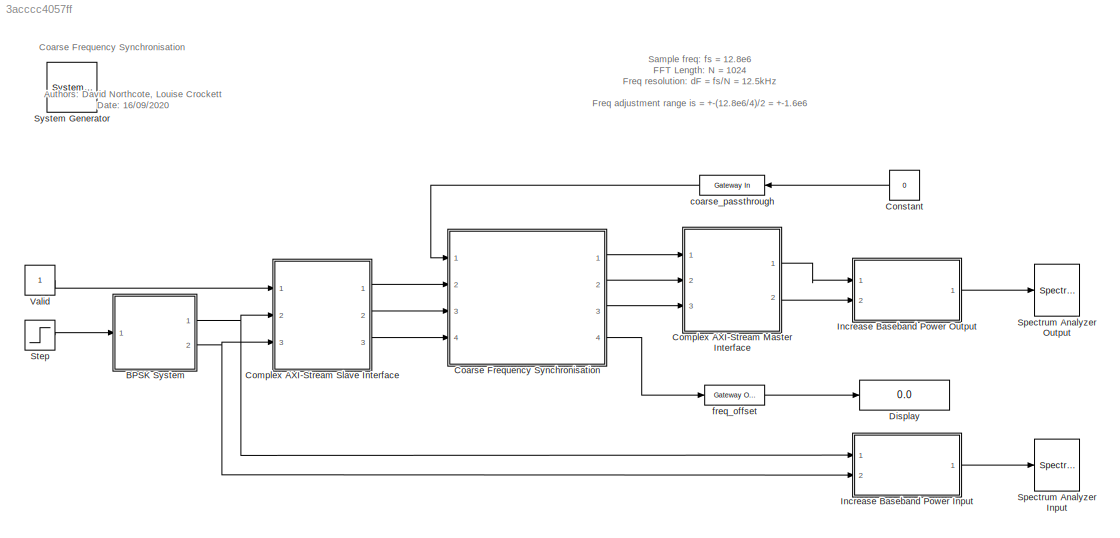
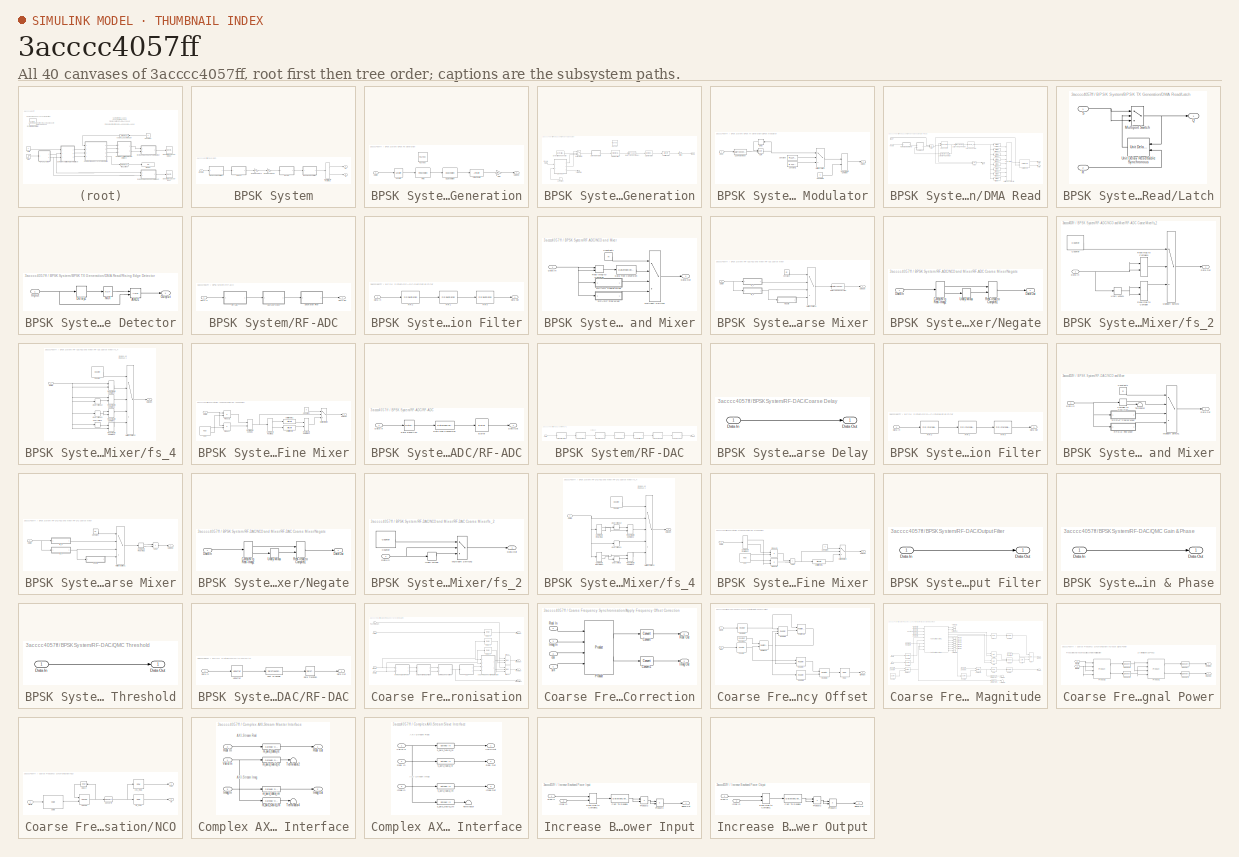
[diagram: thumbnail index - all 40 canvases of the model, root first then tree order]
MODEL slx_3acccc4057ff
KIND model
CONFIG AbsTol = auto
CONFIG EnableMultiTasking = off
CONFIG FixedStep = auto
CONFIG MaxStep = auto
CONFIG MinStep = auto
CONFIG RelTol = 1e-3
CONFIG SampleTimeConstraint = Unconstrained
CONFIG Solver = VariableStepAuto
CONFIG SolverName = VariableStepAuto
CONFIG StartTime = 0.0
CONFIG StopTime = 10.0
BLOCK [Reference]  System Generator  REF=xbsIndex_r4/ System Generator
  AttributesFormatString = System\nGenerator
  Ports = []
  SourceBlock = xbsIndex_r4/ System Generator
  SourceType = Xilinx System Generator Block
  Tag = genX
  UserDataPersistent = on
BLOCK [SubSystem] BPSK System
  Ports = [1, 2]
  RequestExecContextInheritance = off
BLOCK [SubSystem] BPSK System/BPSK RX Generation
  Ports = [1, 1]
  RequestExecContextInheritance = off
BLOCK [Reference] BPSK System/BPSK RX Generation/CIC Decimation  REF=dspmlti4/CIC
Decimation
  Ports = [1, 1]
  SourceBlock = dspmlti4/CIC\nDecimation
  SourceProductBaseCode = DS
  SourceType = CIC Decimation
  UserDataPersistent = on
BLOCK [Inport] BPSK System/BPSK RX Generation/Data In
BLOCK [Outport] BPSK System/BPSK RX Generation/Data Out
  VectorParamsAs1DForOutWhenUnconnected = off
BLOCK [Reference] BPSK System/BPSK RX Generation/FDATool  REF=xbsIndex_r4/FDATool
  Ports = []
  SourceBlock = xbsIndex_r4/FDATool
  SourceType = Xilinx FDATool Interface Block
  UserDataPersistent = on
BLOCK [Reference] BPSK System/BPSK RX Generation/FIR 0  REF=dspmlti4/FIR
Decimation
  Ports = [1, 1]
  SourceBlock = dspmlti4/FIR\nDecimation
  SourceProductBaseCode = DS
  SourceType = FIR Decimation
  UserDataPersistent = on
BLOCK [Gain] BPSK System/BPSK RX Generation/Gain
  Gain = 2^(floor(log2(5^3)))/(5^3)
  OutDataTypeStr = fixdt(1,16,14)
  ParamDataTypeStr = fixdt(1,16,14)
BLOCK [ArithShift] BPSK System/BPSK RX Generation/Shift Arithmetic
  BitShiftDirection = Right
  BitShiftNumber = floor(log2(5^3))
  InputPortMap = u0
  Ports = [1, 1]
BLOCK [Unbuffer] BPSK System/BPSK RX Generation/Unbuffer
  Ports = [1, 1]
BLOCK [SubSystem] BPSK System/BPSK TX Generation
  Ports = [1, 1]
  RequestExecContextInheritance = off
BLOCK [Outport] BPSK System/BPSK TX Generation/BPSK
  VectorParamsAs1DForOutWhenUnconnected = off
BLOCK [Reference] BPSK System/BPSK TX Generation/Bernoulli Binary Generator  REF=commrandsrc3/Bernoulli Binary
Generator
  Ports = [0, 1]
  SourceBlock = commrandsrc3/Bernoulli Binary\nGenerator
  SourceProductBaseCode = CM
  SourceType = Bernoulli Binary Generator
BLOCK [Reference] BPSK System/BPSK TX Generation/CIC Interpolation  REF=dspmlti4/CIC
Interpolation
  Ports = [1, 1]
  SourceBlock = dspmlti4/CIC\nInterpolation
  SourceProductBaseCode = DS
  SourceType = CIC Interpolation
  UserDataPersistent = on
BLOCK [Constant] BPSK System/BPSK TX Generation/Constant
  SampleTime = 1/12.5e3
BLOCK [SubSystem] BPSK System/BPSK TX Generation/DBPSK Modulator
  Ports = [1, 1]
  RequestExecContextInheritance = off
BLOCK [DataTypeConversion] BPSK System/BPSK TX Generation/DBPSK Modulator/Cast To Boolean
  OutDataTypeStr = boolean
  RndMeth = Floor
  SaturateOnIntegerOverflow = off
BLOCK [Constant] BPSK System/BPSK TX Generation/DBPSK Modulator/Constant
  OutDataTypeStr = fixdt(1,16,14)
  SampleTime = -1
  Value = fi(1, 1, 16, 14)
BLOCK [Constant] BPSK System/BPSK TX Generation/DBPSK Modulator/Constant1
  OutDataTypeStr = fixdt(1,16,14)
  SampleTime = -1
  Value = fi(-1, 1, 16, 14)
BLOCK [Constant] BPSK System/BPSK TX Generation/DBPSK Modulator/Constant2
  OutDataTypeStr = Inherit: Inherit via back propagation
  SampleTime = -1
  Value = 0
BLOCK [Delay] BPSK System/BPSK TX Generation/DBPSK Modulator/Delay
  DelayLength = 1
  InputPortMap = u0
  Ports = [1, 1]
BLOCK [Inport] BPSK System/BPSK TX Generation/DBPSK Modulator/Input
BLOCK [MultiPortSwitch] BPSK System/BPSK TX Generation/DBPSK Modulator/Multiport Switch
  DataPortOrder = Zero-based contiguous
  InputSameDT = off
  Inputs = 2
  Ports = [3, 1]
  SaturateOnIntegerOverflow = off
  zeroidx = on
BLOCK [Outport] BPSK System/BPSK TX Generation/DBPSK Modulator/Output
  VectorParamsAs1DForOutWhenUnconnected = off
BLOCK [RealImagToComplex] BPSK System/BPSK TX Generation/DBPSK Modulator/Real-Imag to Complex
  Ports = [2, 1]
BLOCK [Logic] BPSK System/BPSK TX Generation/DBPSK Modulator/XOR
  AllPortsSameDT = off
  IconShape = distinctive
  Operator = XOR
  OutDataTypeStr = boolean
  Ports = [2, 1]
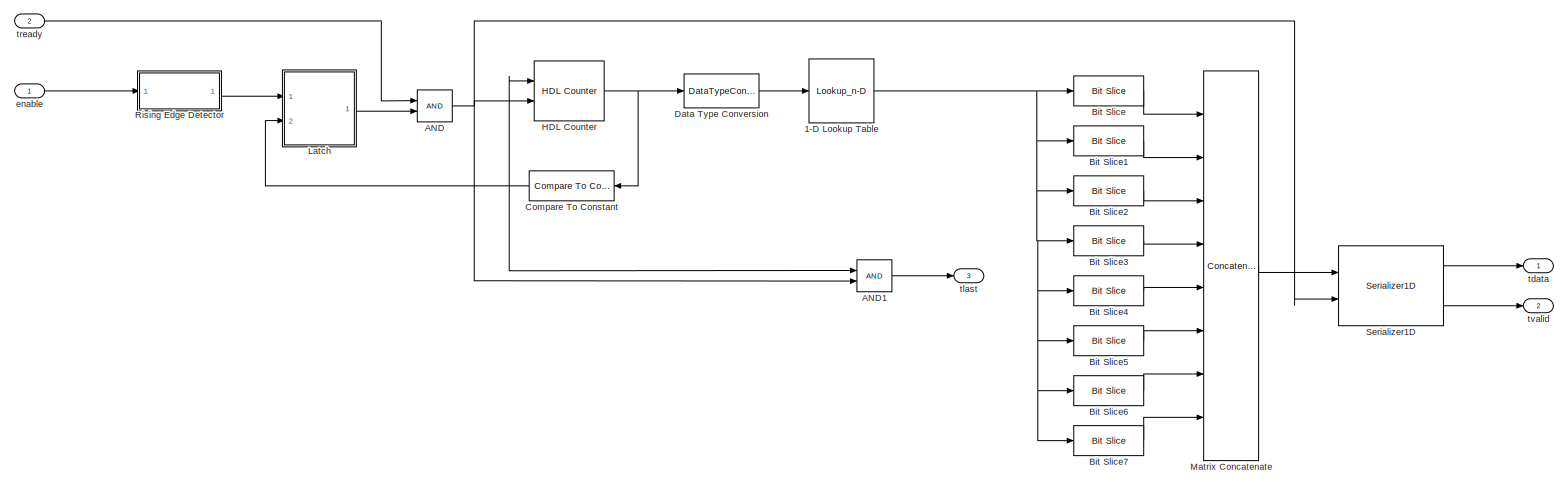
[diagram: BPSK System/BPSK TX Generation/DMA Read - part 1/1, most of the canvas]
BLOCK [SubSystem] BPSK System/BPSK TX Generation/DMA Read
  Ports = [2, 3]
  RequestExecContextInheritance = off
BLOCK [Lookup_n-D] BPSK System/BPSK TX Generation/DMA Read/1-D Lookup Table
  BreakpointsForDimension1 = [0:1:numel(tx_data)-1]
  ExtrapMethod = Clip
  InternalRulePriority = Speed
  NumberOfTableDimensions = 1
  OutDataTypeStr = Inherit: Inherit from 'Table data'
  Ports = [1, 1]
  RndMeth = Simplest
  Table = tx_data
  TableDataTypeStr = Inherit: Inherit from 'Table data'
BLOCK [Logic] BPSK System/BPSK TX Generation/DMA Read/AND
  AllPortsSameDT = off
  IconShape = distinctive
  OutDataTypeStr = boolean
  Ports = [2, 1]
BLOCK [Logic] BPSK System/BPSK TX Generation/DMA Read/AND1
  AllPortsSameDT = off
  IconShape = distinctive
  OutDataTypeStr = boolean
  Ports = [2, 1]
BLOCK [Reference] BPSK System/BPSK TX Generation/DMA Read/Bit Slice  REF=hdlsllib/Logic and Bit
Operations/Bit Slice
  Ports = [1, 1]
  SourceBlock = hdlsllib/Logic and Bit\nOperations/Bit Slice
  SourceProductBaseCode = SL
  SourceType = Bit Slice
BLOCK [Reference] BPSK System/BPSK TX Generation/DMA Read/Bit Slice1  REF=hdlsllib/Logic and Bit
Operations/Bit Slice
  Ports = [1, 1]
  SourceBlock = hdlsllib/Logic and Bit\nOperations/Bit Slice
  SourceProductBaseCode = SL
  SourceType = Bit Slice
BLOCK [Reference] BPSK System/BPSK TX Generation/DMA Read/Bit Slice2  REF=hdlsllib/Logic and Bit
Operations/Bit Slice
  Ports = [1, 1]
  SourceBlock = hdlsllib/Logic and Bit\nOperations/Bit Slice
  SourceProductBaseCode = SL
  SourceType = Bit Slice
BLOCK [Reference] BPSK System/BPSK TX Generation/DMA Read/Bit Slice3  REF=hdlsllib/Logic and Bit
Operations/Bit Slice
  Ports = [1, 1]
  SourceBlock = hdlsllib/Logic and Bit\nOperations/Bit Slice
  SourceProductBaseCode = SL
  SourceType = Bit Slice
BLOCK [Reference] BPSK System/BPSK TX Generation/DMA Read/Bit Slice4  REF=hdlsllib/Logic and Bit
Operations/Bit Slice
  Ports = [1, 1]
  SourceBlock = hdlsllib/Logic and Bit\nOperations/Bit Slice
  SourceProductBaseCode = SL
  SourceType = Bit Slice
BLOCK [Reference] BPSK System/BPSK TX Generation/DMA Read/Bit Slice5  REF=hdlsllib/Logic and Bit
Operations/Bit Slice
  Ports = [1, 1]
  SourceBlock = hdlsllib/Logic and Bit\nOperations/Bit Slice
  SourceProductBaseCode = SL
  SourceType = Bit Slice
BLOCK [Reference] BPSK System/BPSK TX Generation/DMA Read/Bit Slice6  REF=hdlsllib/Logic and Bit
Operations/Bit Slice
  Ports = [1, 1]
  SourceBlock = hdlsllib/Logic and Bit\nOperations/Bit Slice
  SourceProductBaseCode = SL
  SourceType = Bit Slice
BLOCK [Reference] BPSK System/BPSK TX Generation/DMA Read/Bit Slice7  REF=hdlsllib/Logic and Bit
Operations/Bit Slice
  Ports = [1, 1]
  SourceBlock = hdlsllib/Logic and Bit\nOperations/Bit Slice
  SourceProductBaseCode = SL
  SourceType = Bit Slice
BLOCK [Reference] BPSK System/BPSK TX Generation/DMA Read/Compare To Constant  REF=simulink/Logic and Bit
Operations/Compare
To Constant
  Ports = [1, 1]
  SourceBlock = simulink/Logic and Bit\nOperations/Compare\nTo Constant
  SourceProductBaseCode = SL
  SourceType = Compare To Constant
BLOCK [DataTypeConversion] BPSK System/BPSK TX Generation/DMA Read/Data Type Conversion
  OutDataTypeStr = fixdt(0, ceil(log2(numel(tx_data))), 0)
  RndMeth = Floor
  SaturateOnIntegerOverflow = off
BLOCK [Reference] BPSK System/BPSK TX Generation/DMA Read/HDL Counter  REF=hdlsllib/Sources/HDL Counter
  Ports = [2, 1]
  SourceBlock = hdlsllib/Sources/HDL Counter
  SourceProductBaseCode = SL
  SourceType = HDL Counter
BLOCK [SubSystem] BPSK System/BPSK TX Generation/DMA Read/Latch
  Ports = [2, 1]
  RequestExecContextInheritance = off
BLOCK [MultiPortSwitch] BPSK System/BPSK TX Generation/DMA Read/Latch/Multiport Switch
  DataPortOrder = Zero-based contiguous
  InputSameDT = off
  Inputs = 2
  Ports = [3, 1]
  SaturateOnIntegerOverflow = off
  zeroidx = on
BLOCK [Outport] BPSK System/BPSK TX Generation/DMA Read/Latch/Q
  VectorParamsAs1DForOutWhenUnconnected = off
BLOCK [Inport] BPSK System/BPSK TX Generation/DMA Read/Latch/R
  Port = 2
BLOCK [Inport] BPSK System/BPSK TX Generation/DMA Read/Latch/S
BLOCK [Reference] BPSK System/BPSK TX Generation/DMA Read/Latch/Unit Delay Resettable Synchronous  REF=hdlsllib/Discrete/Unit Delay Resettable
Synchronous
  Ports = [2, 1]
  SourceBlock = hdlsllib/Discrete/Unit Delay Resettable\nSynchronous
  SourceProductBaseCode = SL
  SourceType = Unit Delay Resettable Synchronous
BLOCK [Concatenate] BPSK System/BPSK TX Generation/DMA Read/Matrix Concatenate
  ConcatenateDimension = 2
  Mode = Multidimensional array
  NumInputs = 8
  Ports = [8, 1]
BLOCK [SubSystem] BPSK System/BPSK TX Generation/DMA Read/Rising Edge Detector
  Ports = [1, 1]
  RequestExecContextInheritance = off
BLOCK [Logic] BPSK System/BPSK TX Generation/DMA Read/Rising Edge Detector/AND1
  AllPortsSameDT = off
  IconShape = distinctive
  OutDataTypeStr = boolean
  Ports = [2, 1]
BLOCK [Delay] BPSK System/BPSK TX Generation/DMA Read/Rising Edge Detector/Delay1
  DelayLength = 1
  InputPortMap = u0
  Ports = [1, 1]
BLOCK [Inport] BPSK System/BPSK TX Generation/DMA Read/Rising Edge Detector/Input
BLOCK [Logic] BPSK System/BPSK TX Generation/DMA Read/Rising Edge Detector/NOT
  AllPortsSameDT = off
  IconShape = distinctive
  Operator = NOT
  OutDataTypeStr = boolean
  Ports = [1, 1]
BLOCK [Outport] BPSK System/BPSK TX Generation/DMA Read/Rising Edge Detector/Output
  VectorParamsAs1DForOutWhenUnconnected = off
BLOCK [Reference] BPSK System/BPSK TX Generation/DMA Read/Serializer1D  REF=hdlsllib/HDL Operations/Serializer1D
  Ports = [2, 2]
  SourceBlock = hdlsllib/HDL Operations/Serializer1D
  SourceProductBaseCode = SL
  SourceType = Serializer1D
BLOCK [Inport] BPSK System/BPSK TX Generation/DMA Read/enable
BLOCK [Outport] BPSK System/BPSK TX Generation/DMA Read/tdata
  VectorParamsAs1DForOutWhenUnconnected = off
BLOCK [Outport] BPSK System/BPSK TX Generation/DMA Read/tlast
  Port = 3
  VectorParamsAs1DForOutWhenUnconnected = off
BLOCK [Inport] BPSK System/BPSK TX Generation/DMA Read/tready
  Port = 2
BLOCK [Outport] BPSK System/BPSK TX Generation/DMA Read/tvalid
  Port = 2
  VectorParamsAs1DForOutWhenUnconnected = off
BLOCK [DataTypeConversion] BPSK System/BPSK TX Generation/Data Type Conversion2
  OutDataTypeStr = fixdt(1,16,14)
  RndMeth = Floor
  SaturateOnIntegerOverflow = off
BLOCK [Inport] BPSK System/BPSK TX Generation/Enable
BLOCK [Reference] BPSK System/BPSK TX Generation/FDATool  REF=xbsIndex_r4/FDATool
  Ports = []
  SourceBlock = xbsIndex_r4/FDATool
  SourceType = Xilinx FDATool Interface Block
  UserDataPersistent = on
BLOCK [Reference] BPSK System/BPSK TX Generation/FIR Interpolation  REF=dspmlti4/FIR
Interpolation
  Ports = [1, 1]
  SourceBlock = dspmlti4/FIR\nInterpolation
  SourceProductBaseCode = DS
  SourceType = FIR Interpolation
  UserDataPersistent = on
BLOCK [Gain] BPSK System/BPSK TX Generation/Multiply
  Gain = fi(0.8192, 1, 16, 14)
  OutDataTypeStr = fixdt(1,16,14)
  ParamDataTypeStr = fixdt(1,16,15)
BLOCK [MultiPortSwitch] BPSK System/BPSK TX Generation/Multiport Switch
  DataPortOrder = Zero-based contiguous
  InputSameDT = off
  Inputs = 2
  Ports = [3, 1]
  SaturateOnIntegerOverflow = off
  zeroidx = on
BLOCK [ArithShift] BPSK System/BPSK TX Generation/Shift Arithmetic
  BitShiftDirection = Right
  BitShiftNumber = 33
  InputPortMap = u0
  Ports = [1, 1]
BLOCK [Terminator] BPSK System/BPSK TX Generation/Terminator1
BLOCK [ComplexToRealImag] BPSK System/Complex to Real-Imag
  Ports = [1, 2]
BLOCK [Inport] BPSK System/Enable
BLOCK [Outport] BPSK System/Im
  Port = 2
  VectorParamsAs1DForOutWhenUnconnected = off
BLOCK [Gain] BPSK System/RF Balun Gain RX
  Gain = 1/2
BLOCK [Gain] BPSK System/RF Balun Gain TX
  Gain = 1/2
BLOCK [SubSystem] BPSK System/RF-ADC
  Ports = [1, 1]
  RequestExecContextInheritance = off
BLOCK [Inport] BPSK System/RF-ADC/Data In
BLOCK [Outport] BPSK System/RF-ADC/Data Out
  VectorParamsAs1DForOutWhenUnconnected = off
BLOCK [SubSystem] BPSK System/RF-ADC/Decimation Filter
  Ports = [1, 1]
  RequestExecContextInheritance = off
BLOCK [Inport] BPSK System/RF-ADC/Decimation Filter/Data In
BLOCK [Outport] BPSK System/RF-ADC/Decimation Filter/Data Out
  VectorParamsAs1DForOutWhenUnconnected = off
BLOCK [Reference] BPSK System/RF-ADC/Decimation Filter/FIR 0  REF=dspmlti4/FIR
Decimation
  Ports = [1, 1]
  SourceBlock = dspmlti4/FIR\nDecimation
  SourceProductBaseCode = DS
  SourceType = FIR Decimation
  UserDataPersistent = on
BLOCK [Reference] BPSK System/RF-ADC/Decimation Filter/FIR 1  REF=dspmlti4/FIR
Decimation
  Ports = [1, 1]
  SourceBlock = dspmlti4/FIR\nDecimation
  SourceProductBaseCode = DS
  SourceType = FIR Decimation
  UserDataPersistent = on
BLOCK [Reference] BPSK System/RF-ADC/Decimation Filter/FIR 2  REF=dspmlti4/FIR
Decimation
  Ports = [1, 1]
  SourceBlock = dspmlti4/FIR\nDecimation
  SourceProductBaseCode = DS
  SourceType = FIR Decimation
  UserDataPersistent = on
BLOCK [SubSystem] BPSK System/RF-ADC/NCO and Mixer
  Ports = [1, 1]
  RequestExecContextInheritance = off
BLOCK [Constant] BPSK System/RF-ADC/NCO and Mixer/Constant1
  OutDataTypeStr = fixdt(0,2,0)
  SampleTime = -1
  Value = m
BLOCK [Inport] BPSK System/RF-ADC/NCO and Mixer/Data In
BLOCK [Outport] BPSK System/RF-ADC/NCO and Mixer/Data Out
  VectorParamsAs1DForOutWhenUnconnected = off
BLOCK [DataTypeConversion] BPSK System/RF-ADC/NCO and Mixer/Data Type Conversion
  OutDataTypeStr = fixdt(1,16,14)
  RndMeth = Floor
  SaturateOnIntegerOverflow = off
BLOCK [MultiPortSwitch] BPSK System/RF-ADC/NCO and Mixer/Multiport Switch1
  DataPortOrder = Zero-based contiguous
  InputSameDT = off
  Ports = [4, 1]
  SaturateOnIntegerOverflow = off
  zeroidx = on
BLOCK [SubSystem] BPSK System/RF-ADC/NCO and Mixer/RF-ADC Coarse Mixer
  Ports = [1, 1]
  RequestExecContextInheritance = off
BLOCK [Constant] BPSK System/RF-ADC/NCO and Mixer/RF-ADC Coarse Mixer/Constant
  OutDataTypeStr = fixdt(0,2,0)
  SampleTime = -1
  Value = mc
BLOCK [Inport] BPSK System/RF-ADC/NCO and Mixer/RF-ADC Coarse Mixer/Data In
BLOCK [Outport] BPSK System/RF-ADC/NCO and Mixer/RF-ADC Coarse Mixer/Data Out
  VectorParamsAs1DForOutWhenUnconnected = off
BLOCK [DataTypeConversion] BPSK System/RF-ADC/NCO and Mixer/RF-ADC Coarse Mixer/Data Type Conversion
  OutDataTypeStr = fixdt(1,16,14)
  RndMeth = Floor
  SaturateOnIntegerOverflow = off
BLOCK [MultiPortSwitch] BPSK System/RF-ADC/NCO and Mixer/RF-ADC Coarse Mixer/Multiport Switch1
  DataPortOrder = Zero-based contiguous
  InputSameDT = off
  Ports = [4, 1]
  SaturateOnIntegerOverflow = off
  zeroidx = on
BLOCK [SubSystem] BPSK System/RF-ADC/NCO and Mixer/RF-ADC Coarse Mixer/Negate
  Ports = [1, 1]
  RequestExecContextInheritance = off
BLOCK [ComplexToRealImag] BPSK System/RF-ADC/NCO and Mixer/RF-ADC Coarse Mixer/Negate/Complex to Real-Imag2
  Ports = [1, 2]
BLOCK [Inport] BPSK System/RF-ADC/NCO and Mixer/RF-ADC Coarse Mixer/Negate/Data In
BLOCK [Outport] BPSK System/RF-ADC/NCO and Mixer/RF-ADC Coarse Mixer/Negate/Data Out
  VectorParamsAs1DForOutWhenUnconnected = off
BLOCK [RealImagToComplex] BPSK System/RF-ADC/NCO and Mixer/RF-ADC Coarse Mixer/Negate/Real-Imag to Complex1
  Ports = [2, 1]
BLOCK [UnaryMinus] BPSK System/RF-ADC/NCO and Mixer/RF-ADC Coarse Mixer/Negate/Unary Minus
BLOCK [SubSystem] BPSK System/RF-ADC/NCO and Mixer/RF-ADC Coarse Mixer/fs_2
  Ports = [1, 1]
  RequestExecContextInheritance = off
BLOCK [Reference] BPSK System/RF-ADC/NCO and Mixer/RF-ADC Coarse Mixer/fs_2/Counter  REF=dspswit3/Counter
  Ports = [0, 1]
  SourceBlock = dspswit3/Counter
  SourceProductBaseCode = DS
  SourceType = Counter
BLOCK [Inport] BPSK System/RF-ADC/NCO and Mixer/RF-ADC Coarse Mixer/fs_2/Data In
BLOCK [Outport] BPSK System/RF-ADC/NCO and Mixer/RF-ADC Coarse Mixer/fs_2/Data Out
  VectorParamsAs1DForOutWhenUnconnected = off
BLOCK [MultiPortSwitch] BPSK System/RF-ADC/NCO and Mixer/RF-ADC Coarse Mixer/fs_2/Multiport Switch2
  DataPortOrder = Zero-based contiguous
  InputSameDT = off
  Inputs = 2
  Ports = [3, 1]
  SaturateOnIntegerOverflow = off
  zeroidx = on
BLOCK [RealImagToComplex] BPSK System/RF-ADC/NCO and Mixer/RF-ADC Coarse Mixer/fs_2/Real-Imag to Complex
  Ports = [2, 1]
BLOCK [RealImagToComplex] BPSK System/RF-ADC/NCO and Mixer/RF-ADC Coarse Mixer/fs_2/Real-Imag to Complex1
  Ports = [2, 1]
BLOCK [UnaryMinus] BPSK System/RF-ADC/NCO and Mixer/RF-ADC Coarse Mixer/fs_2/Unary Minus1
BLOCK [SubSystem] BPSK System/RF-ADC/NCO and Mixer/RF-ADC Coarse Mixer/fs_4
  Ports = [1, 1]
  RequestExecContextInheritance = off
BLOCK [Reference] BPSK System/RF-ADC/NCO and Mixer/RF-ADC Coarse Mixer/fs_4/Counter  REF=dspswit3/Counter
  Ports = [0, 1]
  SourceBlock = dspswit3/Counter
  SourceProductBaseCode = DS
  SourceType = Counter
BLOCK [Inport] BPSK System/RF-ADC/NCO and Mixer/RF-ADC Coarse Mixer/fs_4/Data In
BLOCK [Outport] BPSK System/RF-ADC/NCO and Mixer/RF-ADC Coarse Mixer/fs_4/Data Out
  VectorParamsAs1DForOutWhenUnconnected = off
BLOCK [MultiPortSwitch] BPSK System/RF-ADC/NCO and Mixer/RF-ADC Coarse Mixer/fs_4/Multiport Switch2
  DataPortOrder = Zero-based contiguous
  InputSameDT = off
  Inputs = 4
  Ports = [5, 1]
  SaturateOnIntegerOverflow = off
  zeroidx = on
BLOCK [RealImagToComplex] BPSK System/RF-ADC/NCO and Mixer/RF-ADC Coarse Mixer/fs_4/Real-Imag to Complex1
  Ports = [2, 1]
BLOCK [RealImagToComplex] BPSK System/RF-ADC/NCO and Mixer/RF-ADC Coarse Mixer/fs_4/Real-Imag to Complex2
  Ports = [2, 1]
BLOCK [RealImagToComplex] BPSK System/RF-ADC/NCO and Mixer/RF-ADC Coarse Mixer/fs_4/Real-Imag to Complex3
  Ports = [2, 1]
BLOCK [RealImagToComplex] BPSK System/RF-ADC/NCO and Mixer/RF-ADC Coarse Mixer/fs_4/Real-Imag to Complex4
  Ports = [2, 1]
BLOCK [UnaryMinus] BPSK System/RF-ADC/NCO and Mixer/RF-ADC Coarse Mixer/fs_4/Unary Minus
BLOCK [UnaryMinus] BPSK System/RF-ADC/NCO and Mixer/RF-ADC Coarse Mixer/fs_4/Unary Minus1
BLOCK [UnaryMinus] BPSK System/RF-ADC/NCO and Mixer/RF-ADC Coarse Mixer/fs_4/Unary Minus2
BLOCK [SubSystem] BPSK System/RF-ADC/NCO and Mixer/RF-ADC Fine Mixer
  Ports = [1, 1]
  RequestExecContextInheritance = off
BLOCK [ComplexToRealImag] BPSK System/RF-ADC/NCO and Mixer/RF-ADC Fine Mixer/Complex to Real-Imag
  Ports = [1, 2]
BLOCK [Constant] BPSK System/RF-ADC/NCO and Mixer/RF-ADC Fine Mixer/Constant
  SampleTime = -1
  Value = 0
BLOCK [Inport] BPSK System/RF-ADC/NCO and Mixer/RF-ADC Fine Mixer/Data In
BLOCK [Outport] BPSK System/RF-ADC/NCO and Mixer/RF-ADC Fine Mixer/Data Out
  VectorParamsAs1DForOutWhenUnconnected = off
BLOCK [MultiPortSwitch] BPSK System/RF-ADC/NCO and Mixer/RF-ADC Fine Mixer/Multiport Switch
  DataPortOrder = Zero-based contiguous
  InputSameDT = off
  Inputs = 2
  Ports = [3, 1]
  SaturateOnIntegerOverflow = off
  zeroidx = on
BLOCK [Reference] BPSK System/RF-ADC/NCO and Mixer/RF-ADC Fine Mixer/NCO  REF=dspsigops/NCO
  Ports = [0, 2]
  SourceBlock = dspsigops/NCO
  SourceProductBaseCode = DS
  SourceType = NCO
BLOCK [Product] BPSK System/RF-ADC/NCO and Mixer/RF-ADC Fine Mixer/Product
  OutDataTypeStr = fixdt(1,16,14)
  Ports = [2, 1]
BLOCK [Product] BPSK System/RF-ADC/NCO and Mixer/RF-ADC Fine Mixer/Product1
  OutDataTypeStr = fixdt(1,16,14)
  Ports = [2, 1]
BLOCK [RealImagToComplex] BPSK System/RF-ADC/NCO and Mixer/RF-ADC Fine Mixer/Real-Imag to Complex
  Ports = [2, 1]
BLOCK [RealImagToComplex] BPSK System/RF-ADC/NCO and Mixer/RF-ADC Fine Mixer/Real-Imag to Complex1
  Ports = [2, 1]
BLOCK [ArithShift] BPSK System/RF-ADC/NCO and Mixer/RF-ADC Fine Mixer/Shift Arithmetic
  BitShiftDirection = Right
  BitShiftNumber = 1
  InputPortMap = u0
  Ports = [1, 1]
BLOCK [ArithShift] BPSK System/RF-ADC/NCO and Mixer/RF-ADC Fine Mixer/Shift Arithmetic1
  BitShiftDirection = Right
  BitShiftNumber = 1
  InputPortMap = u0
  Ports = [1, 1]
BLOCK [RealImagToComplex] BPSK System/RF-ADC/NCO and Mixer/Real-Imag to Complex
  Ports = [2, 1]
BLOCK [SubSystem] BPSK System/RF-ADC/RF-ADC
  Ports = [1, 1]
  RequestExecContextInheritance = off
BLOCK [Buffer] BPSK System/RF-ADC/RF-ADC/Buffer
  N = ssr
  OutputFrames = off
BLOCK [Inport] BPSK System/RF-ADC/RF-ADC/Data In
BLOCK [Outport] BPSK System/RF-ADC/RF-ADC/Data Out
  VectorParamsAs1DForOutWhenUnconnected = off
BLOCK [DataTypeConversion] BPSK System/RF-ADC/RF-ADC/Data Type Conversion
  OutDataTypeStr = fixdt(1,12,10)
  RndMeth = Floor
  SaturateOnIntegerOverflow = off
BLOCK [RateTransition] BPSK System/RF-ADC/RF-ADC/Rate Transition
  OutPortSampleTime = 1/fs
BLOCK [SubSystem] BPSK System/RF-DAC
  Ports = [1, 1]
  RequestExecContextInheritance = off
BLOCK [SubSystem] BPSK System/RF-DAC/Coarse Delay
  Ports = [1, 1]
  RequestExecContextInheritance = off
BLOCK [Inport] BPSK System/RF-DAC/Coarse Delay/Data In
BLOCK [Outport] BPSK System/RF-DAC/Coarse Delay/Data Out
  VectorParamsAs1DForOutWhenUnconnected = off
BLOCK [Inport] BPSK System/RF-DAC/Data In
BLOCK [Outport] BPSK System/RF-DAC/Data Out
  VectorParamsAs1DForOutWhenUnconnected = off
BLOCK [SubSystem] BPSK System/RF-DAC/Interpolation Filter
  Ports = [1, 1]
  RequestExecContextInheritance = off
BLOCK [Inport] BPSK System/RF-DAC/Interpolation Filter/Data In
BLOCK [Outport] BPSK System/RF-DAC/Interpolation Filter/Data Out
  VectorParamsAs1DForOutWhenUnconnected = off
BLOCK [Reference] BPSK System/RF-DAC/Interpolation Filter/FIR 0  REF=dspmlti4/FIR
Interpolation
  Ports = [1, 1]
  SourceBlock = dspmlti4/FIR\nInterpolation
  SourceProductBaseCode = DS
  SourceType = FIR Interpolation
  UserDataPersistent = on
BLOCK [Reference] BPSK System/RF-DAC/Interpolation Filter/FIR 1  REF=dspmlti4/FIR
Interpolation
  Ports = [1, 1]
  SourceBlock = dspmlti4/FIR\nInterpolation
  SourceProductBaseCode = DS
  SourceType = FIR Interpolation
  UserDataPersistent = on
BLOCK [Reference] BPSK System/RF-DAC/Interpolation Filter/FIR 2  REF=dspmlti4/FIR
Interpolation
  Ports = [1, 1]
  SourceBlock = dspmlti4/FIR\nInterpolation
  SourceProductBaseCode = DS
  SourceType = FIR Interpolation
  UserDataPersistent = on
BLOCK [SubSystem] BPSK System/RF-DAC/NCO and Mixer
  Ports = [1, 1]
  RequestExecContextInheritance = off
BLOCK [ComplexToRealImag] BPSK System/RF-DAC/NCO and Mixer/Complex to Real-Imag
  Ports = [1, 2]
BLOCK [Constant] BPSK System/RF-DAC/NCO and Mixer/Constant1
  OutDataTypeStr = fixdt(0,2,0)
  SampleTime = -1
  Value = m
BLOCK [Inport] BPSK System/RF-DAC/NCO and Mixer/Data In
BLOCK [Outport] BPSK System/RF-DAC/NCO and Mixer/Data Out
  VectorParamsAs1DForOutWhenUnconnected = off
BLOCK [MultiPortSwitch] BPSK System/RF-DAC/NCO and Mixer/Multiport Switch1
  DataPortOrder = Zero-based contiguous
  InputSameDT = off
  Ports = [4, 1]
  SaturateOnIntegerOverflow = off
  zeroidx = on
BLOCK [SubSystem] BPSK System/RF-DAC/NCO and Mixer/RF-DAC Coarse Mixer
  Ports = [1, 1]
  RequestExecContextInheritance = off
BLOCK [Sum] BPSK System/RF-DAC/NCO and Mixer/RF-DAC Coarse Mixer/Add2
  IconShape = rectangular
  Ports = [2, 1]
BLOCK [ComplexToRealImag] BPSK System/RF-DAC/NCO and Mixer/RF-DAC Coarse Mixer/Complex to Real-Imag
  Ports = [1, 2]
BLOCK [Constant] BPSK System/RF-DAC/NCO and Mixer/RF-DAC Coarse Mixer/Constant
  OutDataTypeStr = fixdt(0,2,0)
  SampleTime = -1
  Value = mc
BLOCK [Inport] BPSK System/RF-DAC/NCO and Mixer/RF-DAC Coarse Mixer/Data In
BLOCK [Outport] BPSK System/RF-DAC/NCO and Mixer/RF-DAC Coarse Mixer/Data Out
  VectorParamsAs1DForOutWhenUnconnected = off
BLOCK [MultiPortSwitch] BPSK System/RF-DAC/NCO and Mixer/RF-DAC Coarse Mixer/Multiport Switch1
  DataPortOrder = Zero-based contiguous
  InputSameDT = off
  Ports = [4, 1]
  SaturateOnIntegerOverflow = off
  zeroidx = on
BLOCK [SubSystem] BPSK System/RF-DAC/NCO and Mixer/RF-DAC Coarse Mixer/Negate
  Ports = [1, 1]
  RequestExecContextInheritance = off
BLOCK [ComplexToRealImag] BPSK System/RF-DAC/NCO and Mixer/RF-DAC Coarse Mixer/Negate/Complex to Real-Imag2
  Ports = [1, 2]
BLOCK [Inport] BPSK System/RF-DAC/NCO and Mixer/RF-DAC Coarse Mixer/Negate/Data In
BLOCK [Outport] BPSK System/RF-DAC/NCO and Mixer/RF-DAC Coarse Mixer/Negate/Data Out
  VectorParamsAs1DForOutWhenUnconnected = off
BLOCK [RealImagToComplex] BPSK System/RF-DAC/NCO and Mixer/RF-DAC Coarse Mixer/Negate/Real-Imag to Complex1
  Ports = [2, 1]
BLOCK [UnaryMinus] BPSK System/RF-DAC/NCO and Mixer/RF-DAC Coarse Mixer/Negate/Unary Minus
BLOCK [SubSystem] BPSK System/RF-DAC/NCO and Mixer/RF-DAC Coarse Mixer/fs_2
  Ports = [1, 1]
  RequestExecContextInheritance = off
BLOCK [Reference] BPSK System/RF-DAC/NCO and Mixer/RF-DAC Coarse Mixer/fs_2/Counter  REF=dspswit3/Counter
  Ports = [0, 1]
  SourceBlock = dspswit3/Counter
  SourceProductBaseCode = DS
  SourceType = Counter
BLOCK [Inport] BPSK System/RF-DAC/NCO and Mixer/RF-DAC Coarse Mixer/fs_2/Data In
BLOCK [Outport] BPSK System/RF-DAC/NCO and Mixer/RF-DAC Coarse Mixer/fs_2/Data Out
  VectorParamsAs1DForOutWhenUnconnected = off
BLOCK [MultiPortSwitch] BPSK System/RF-DAC/NCO and Mixer/RF-DAC Coarse Mixer/fs_2/Multiport Switch2
  DataPortOrder = Zero-based contiguous
  InputSameDT = off
  Inputs = 2
  Ports = [3, 1]
  SaturateOnIntegerOverflow = off
  zeroidx = on
BLOCK [UnaryMinus] BPSK System/RF-DAC/NCO and Mixer/RF-DAC Coarse Mixer/fs_2/Unary Minus
BLOCK [SubSystem] BPSK System/RF-DAC/NCO and Mixer/RF-DAC Coarse Mixer/fs_4
  Ports = [1, 1]
  RequestExecContextInheritance = off
BLOCK [ComplexToRealImag] BPSK System/RF-DAC/NCO and Mixer/RF-DAC Coarse Mixer/fs_4/Complex to Real-Imag
  Ports = [1, 2]
BLOCK [ComplexToRealImag] BPSK System/RF-DAC/NCO and Mixer/RF-DAC Coarse Mixer/fs_4/Complex to Real-Imag1
  Ports = [1, 2]
BLOCK [Reference] BPSK System/RF-DAC/NCO and Mixer/RF-DAC Coarse Mixer/fs_4/Counter  REF=dspswit3/Counter
  Ports = [0, 1]
  SourceBlock = dspswit3/Counter
  SourceProductBaseCode = DS
  SourceType = Counter
BLOCK [Inport] BPSK System/RF-DAC/NCO and Mixer/RF-DAC Coarse Mixer/fs_4/Data In
BLOCK [Outport] BPSK System/RF-DAC/NCO and Mixer/RF-DAC Coarse Mixer/fs_4/Data Out
  VectorParamsAs1DForOutWhenUnconnected = off
BLOCK [MultiPortSwitch] BPSK System/RF-DAC/NCO and Mixer/RF-DAC Coarse Mixer/fs_4/Multiport Switch2
  DataPortOrder = Zero-based contiguous
  InputSameDT = off
  Inputs = 4
  Ports = [5, 1]
  SaturateOnIntegerOverflow = off
  zeroidx = on
BLOCK [RealImagToComplex] BPSK System/RF-DAC/NCO and Mixer/RF-DAC Coarse Mixer/fs_4/Real-Imag to Complex2
  Ports = [2, 1]
BLOCK [RealImagToComplex] BPSK System/RF-DAC/NCO and Mixer/RF-DAC Coarse Mixer/fs_4/Real-Imag to Complex3
  Ports = [2, 1]
BLOCK [UnaryMinus] BPSK System/RF-DAC/NCO and Mixer/RF-DAC Coarse Mixer/fs_4/Unary Minus
BLOCK [UnaryMinus] BPSK System/RF-DAC/NCO and Mixer/RF-DAC Coarse Mixer/fs_4/Unary Minus1
BLOCK [UnaryMinus] BPSK System/RF-DAC/NCO and Mixer/RF-DAC Coarse Mixer/fs_4/Unary Minus2
BLOCK [SubSystem] BPSK System/RF-DAC/NCO and Mixer/RF-DAC Fine Mixer
  Ports = [1, 1]
  RequestExecContextInheritance = off
BLOCK [Sum] BPSK System/RF-DAC/NCO and Mixer/RF-DAC Fine Mixer/Add2
  IconShape = rectangular
  Ports = [2, 1]
BLOCK [ComplexToRealImag] BPSK System/RF-DAC/NCO and Mixer/RF-DAC Fine Mixer/Complex to Real-Imag1
  Ports = [1, 2]
BLOCK [Constant] BPSK System/RF-DAC/NCO and Mixer/RF-DAC Fine Mixer/Constant
  OutDataTypeStr = boolean
  SampleTime = -1
  Value = 0
BLOCK [Inport] BPSK System/RF-DAC/NCO and Mixer/RF-DAC Fine Mixer/Data In
BLOCK [Outport] BPSK System/RF-DAC/NCO and Mixer/RF-DAC Fine Mixer/Data Out
  VectorParamsAs1DForOutWhenUnconnected = off
BLOCK [MultiPortSwitch] BPSK System/RF-DAC/NCO and Mixer/RF-DAC Fine Mixer/Multiport Switch
  DataPortOrder = Zero-based contiguous
  InputSameDT = off
  Inputs = 2
  Ports = [3, 1]
  SaturateOnIntegerOverflow = off
  zeroidx = on
BLOCK [Reference] BPSK System/RF-DAC/NCO and Mixer/RF-DAC Fine Mixer/NCO  REF=dspsigops/NCO
  Ports = [0, 2]
  SourceBlock = dspsigops/NCO
  SourceProductBaseCode = DS
  SourceType = NCO
BLOCK [Product] BPSK System/RF-DAC/NCO and Mixer/RF-DAC Fine Mixer/Product1
  OutDataTypeStr = Inherit: Same as first input
  Ports = [2, 1]
BLOCK [Product] BPSK System/RF-DAC/NCO and Mixer/RF-DAC Fine Mixer/Product4
  OutDataTypeStr = Inherit: Same as first input
  Ports = [2, 1]
BLOCK [ArithShift] BPSK System/RF-DAC/NCO and Mixer/RF-DAC Fine Mixer/Shift Arithmetic1
  BitShiftDirection = Right
  BitShiftNumber = 1
  InputPortMap = u0
  Ports = [1, 1]
BLOCK [Terminator] BPSK System/RF-DAC/NCO and Mixer/Terminator
BLOCK [SubSystem] BPSK System/RF-DAC/Output Filter
  Ports = [1, 1]
  RequestExecContextInheritance = off
BLOCK [Inport] BPSK System/RF-DAC/Output Filter/Data In
BLOCK [Outport] BPSK System/RF-DAC/Output Filter/Data Out
  VectorParamsAs1DForOutWhenUnconnected = off
BLOCK [SubSystem] BPSK System/RF-DAC/QMC Gain & Phase
  Ports = [1, 1]
  RequestExecContextInheritance = off
BLOCK [Inport] BPSK System/RF-DAC/QMC Gain & Phase/Data In
BLOCK [Outport] BPSK System/RF-DAC/QMC Gain & Phase/Data Out
  VectorParamsAs1DForOutWhenUnconnected = off
BLOCK [SubSystem] BPSK System/RF-DAC/QMC Threshold
  Ports = [1, 1]
  RequestExecContextInheritance = off
BLOCK [Inport] BPSK System/RF-DAC/QMC Threshold/Data In
BLOCK [Outport] BPSK System/RF-DAC/QMC Threshold/Data Out
  VectorParamsAs1DForOutWhenUnconnected = off
BLOCK [SubSystem] BPSK System/RF-DAC/RF-DAC
  Ports = [1, 1]
  RequestExecContextInheritance = off
BLOCK [DataTypeConversion] BPSK System/RF-DAC/RF-DAC/Cast To Double
  OutDataTypeStr = double
  RndMeth = Floor
  SaturateOnIntegerOverflow = off
BLOCK [Inport] BPSK System/RF-DAC/RF-DAC/Data In
BLOCK [Outport] BPSK System/RF-DAC/RF-DAC/Data Out
  VectorParamsAs1DForOutWhenUnconnected = off
BLOCK [RateTransition] BPSK System/RF-DAC/RF-DAC/Rate Transition
  OutPortSampleTime = 0
BLOCK [Unbuffer] BPSK System/RF-DAC/RF-DAC/Unbuffer
  Ports = [1, 1]
BLOCK [Outport] BPSK System/Re
  VectorParamsAs1DForOutWhenUnconnected = off
BLOCK [SubSystem] Coarse Frequency Synchronisation
  Ports = [4, 4]
  RequestExecContextInheritance = off
BLOCK [SubSystem] Coarse Frequency Synchronisation/Apply Frequency Offset Correction
  Ports = [4, 2]
  RequestExecContextInheritance = off
BLOCK [Reference] Coarse Frequency Synchronisation/Apply Frequency Offset Correction/Convert  REF=xbsIndex_r4/Convert
  Ports = [1, 1]
  SourceBlock = xbsIndex_r4/Convert
  SourceType = Xilinx Type Converter Block
BLOCK [Reference] Coarse Frequency Synchronisation/Apply Frequency Offset Correction/Convert1  REF=xbsIndex_r4/Convert
  Ports = [1, 1]
  SourceBlock = xbsIndex_r4/Convert
  SourceType = Xilinx Type Converter Block
BLOCK [Inport] Coarse Frequency Synchronisation/Apply Frequency Offset Correction/Imag In
BLOCK [Outport] Coarse Frequency Synchronisation/Apply Frequency Offset Correction/Imag Out
  VectorParamsAs1DForOutWhenUnconnected = off
BLOCK [Reference] Coarse Frequency Synchronisation/Apply Frequency Offset Correction/Product  REF=xbsIndex_r4/Product
  Ports = [4, 2]
  SourceBlock = xbsIndex_r4/Product
  SourceType = Xilinx Multiplier Block
BLOCK [Inport] Coarse Frequency Synchronisation/Apply Frequency Offset Correction/Real In
  Port = 2
BLOCK [Outport] Coarse Frequency Synchronisation/Apply Frequency Offset Correction/Real Out
  Port = 2
  VectorParamsAs1DForOutWhenUnconnected = off
BLOCK [Inport] Coarse Frequency Synchronisation/Apply Frequency Offset Correction/cos
  Port = 3
BLOCK [Inport] Coarse Frequency Synchronisation/Apply Frequency Offset Correction/sin
  Port = 4
BLOCK [Reference] Coarse Frequency Synchronisation/Delay1  REF=xbsIndex_r4/Delay
  Ports = [1, 1]
  SourceBlock = xbsIndex_r4/Delay
  SourceType = Xilinx Delay Block
BLOCK [Reference] Coarse Frequency Synchronisation/Delay2  REF=xbsIndex_r4/Delay
  Ports = [1, 1]
  SourceBlock = xbsIndex_r4/Delay
  SourceType = Xilinx Delay Block
BLOCK [Reference] Coarse Frequency Synchronisation/Delay3  REF=xbsIndex_r4/Delay
  Ports = [1, 1]
  SourceBlock = xbsIndex_r4/Delay
  SourceType = Xilinx Delay Block
BLOCK [Outport] Coarse Frequency Synchronisation/Freq Offset
  Port = 4
  VectorParamsAs1DForOutWhenUnconnected = off
BLOCK [SubSystem] Coarse Frequency Synchronisation/Get Frequency Offset
  Ports = [2, 1]
  RequestExecContextInheritance = off
BLOCK [Reference] Coarse Frequency Synchronisation/Get Frequency Offset/Constant  REF=xbsIndex_r4/Constant
  Ports = [0, 1]
  SourceBlock = xbsIndex_r4/Constant
  SourceType = Xilinx Constant Block Block
BLOCK [Reference] Coarse Frequency Synchronisation/Get Frequency Offset/Counter  REF=xbsIndex_r4/Counter
  Ports = [1, 1]
  SourceBlock = xbsIndex_r4/Counter
  SourceType = Xilinx Counter Block
BLOCK [Inport] Coarse Frequency Synchronisation/Get Frequency Offset/Mag In
BLOCK [Outport] Coarse Frequency Synchronisation/Get Frequency Offset/Offset Out
  VectorParamsAs1DForOutWhenUnconnected = off
BLOCK [Reference] Coarse Frequency Synchronisation/Get Frequency Offset/ROM  REF=xbsIndex_r4/ROM
  Ports = [1, 1]
  SourceBlock = xbsIndex_r4/ROM
  SourceType = Xilinx Single Port Read-Only Memory Block
BLOCK [Reference] Coarse Frequency Synchronisation/Get Frequency Offset/Register  REF=xbsIndex_r4/Register
  Ports = [2, 1]
  SourceBlock = xbsIndex_r4/Register
  SourceType = Xilinx Register Block
BLOCK [Reference] Coarse Frequency Synchronisation/Get Frequency Offset/Register1  REF=xbsIndex_r4/Register
  Ports = [2, 1]
  SourceBlock = xbsIndex_r4/Register
  SourceType = Xilinx Register Block
BLOCK [Reference] Coarse Frequency Synchronisation/Get Frequency Offset/Register2  REF=xbsIndex_r4/Register
  Ports = [1, 1]
  SourceBlock = xbsIndex_r4/Register
  SourceType = Xilinx Register Block
BLOCK [Reference] Coarse Frequency Synchronisation/Get Frequency Offset/Register3  REF=xbsIndex_r4/Register
  Ports = [1, 1]
  SourceBlock = xbsIndex_r4/Register
  SourceType = Xilinx Register Block
BLOCK [Reference] Coarse Frequency Synchronisation/Get Frequency Offset/Register4  REF=xbsIndex_r4/Register
  Ports = [3, 1]
  SourceBlock = xbsIndex_r4/Register
  SourceType = Xilinx Register Block
BLOCK [Reference] Coarse Frequency Synchronisation/Get Frequency Offset/Relational  REF=xbsIndex_r4/Relational
  Ports = [2, 1]
  SourceBlock = xbsIndex_r4/Relational
  SourceType = Xilinx Arithmetic Relational Operator Block
BLOCK [Reference] Coarse Frequency Synchronisation/Get Frequency Offset/Relational2  REF=xbsIndex_r4/Relational
  Ports = [2, 1]
  SourceBlock = xbsIndex_r4/Relational
  SourceType = Xilinx Arithmetic Relational Operator Block
BLOCK [Inport] Coarse Frequency Synchronisation/Get Frequency Offset/SoF
  Port = 2
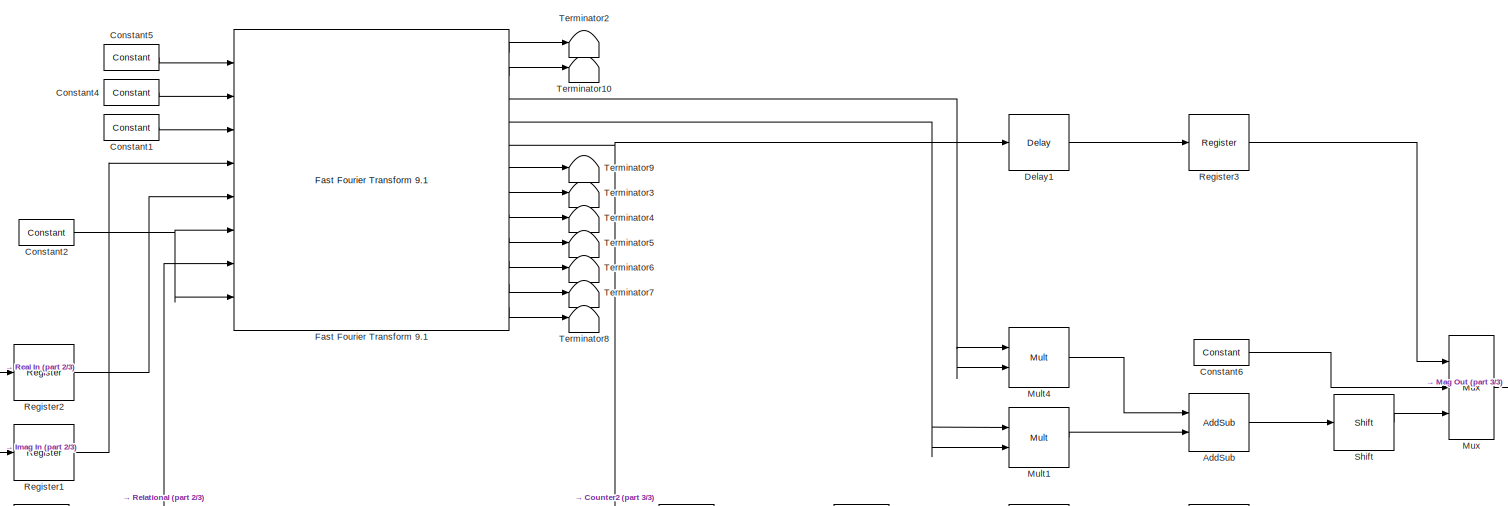
[diagram: Coarse Frequency Synchronisation/Get Spectrum Magnitude - part 1/3, full width, middle band]
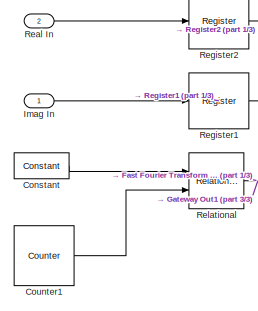
[diagram: Coarse Frequency Synchronisation/Get Spectrum Magnitude - part 2/3, bottom left region]
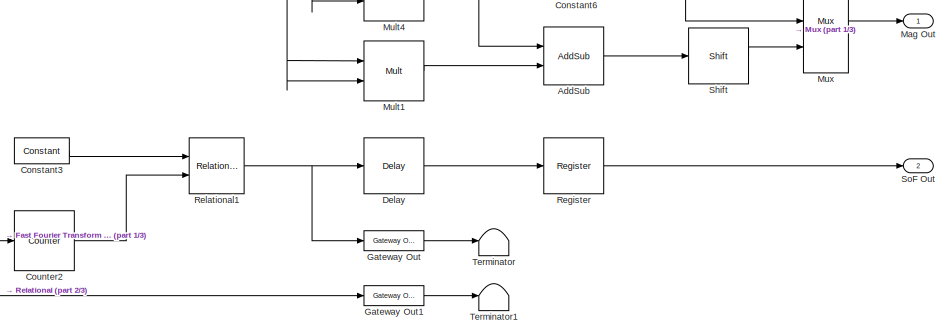
[diagram: Coarse Frequency Synchronisation/Get Spectrum Magnitude - part 3/3, bottom right region]
BLOCK [SubSystem] Coarse Frequency Synchronisation/Get Spectrum Magnitude
  Ports = [2, 2]
  RequestExecContextInheritance = off
BLOCK [Reference] Coarse Frequency Synchronisation/Get Spectrum Magnitude/AddSub  REF=xbsIndex_r4/AddSub
  Ports = [2, 1]
  SourceBlock = xbsIndex_r4/AddSub
  SourceType = Xilinx Adder/Subtracter Block
BLOCK [Reference] Coarse Frequency Synchronisation/Get Spectrum Magnitude/Constant  REF=xbsIndex_r4/Constant
  Ports = [0, 1]
  SourceBlock = xbsIndex_r4/Constant
  SourceType = Xilinx Constant Block Block
BLOCK [Reference] Coarse Frequency Synchronisation/Get Spectrum Magnitude/Constant1  REF=xbsIndex_r4/Constant
  Ports = [0, 1]
  SourceBlock = xbsIndex_r4/Constant
  SourceType = Xilinx Constant Block Block
BLOCK [Reference] Coarse Frequency Synchronisation/Get Spectrum Magnitude/Constant2  REF=xbsIndex_r4/Constant
  Ports = [0, 1]
  SourceBlock = xbsIndex_r4/Constant
  SourceType = Xilinx Constant Block Block
BLOCK [Reference] Coarse Frequency Synchronisation/Get Spectrum Magnitude/Constant3  REF=xbsIndex_r4/Constant
  Ports = [0, 1]
  SourceBlock = xbsIndex_r4/Constant
  SourceType = Xilinx Constant Block Block
BLOCK [Reference] Coarse Frequency Synchronisation/Get Spectrum Magnitude/Constant4  REF=xbsIndex_r4/Constant
  Ports = [0, 1]
  SourceBlock = xbsIndex_r4/Constant
  SourceType = Xilinx Constant Block Block
BLOCK [Reference] Coarse Frequency Synchronisation/Get Spectrum Magnitude/Constant5  REF=xbsIndex_r4/Constant
  Ports = [0, 1]
  SourceBlock = xbsIndex_r4/Constant
  SourceType = Xilinx Constant Block Block
BLOCK [Reference] Coarse Frequency Synchronisation/Get Spectrum Magnitude/Constant6  REF=xbsIndex_r4/Constant
  Ports = [0, 1]
  SourceBlock = xbsIndex_r4/Constant
  SourceType = Xilinx Constant Block Block
BLOCK [Reference] Coarse Frequency Synchronisation/Get Spectrum Magnitude/Counter1  REF=xbsIndex_r4/Counter
  Ports = [0, 1]
  SourceBlock = xbsIndex_r4/Counter
  SourceType = Xilinx Counter Block
BLOCK [Reference] Coarse Frequency Synchronisation/Get Spectrum Magnitude/Counter2  REF=xbsIndex_r4/Counter
  Ports = [1, 1]
  SourceBlock = xbsIndex_r4/Counter
  SourceType = Xilinx Counter Block
BLOCK [Reference] Coarse Frequency Synchronisation/Get Spectrum Magnitude/Delay  REF=xbsIndex_r4/Delay
  Ports = [1, 1]
  SourceBlock = xbsIndex_r4/Delay
  SourceType = Xilinx Delay Block
BLOCK [Reference] Coarse Frequency Synchronisation/Get Spectrum Magnitude/Delay1  REF=xbsIndex_r4/Delay
  Ports = [1, 1]
  SourceBlock = xbsIndex_r4/Delay
  SourceType = Xilinx Delay Block
BLOCK [Reference] Coarse Frequency Synchronisation/Get Spectrum Magnitude/Fast Fourier Transform 9.1   REF=xbsIndex_r4/Fast Fourier Transform 9.1 
  Ports = [8, 12]
  SourceBlock = xbsIndex_r4/Fast Fourier Transform 9.1
  SourceType = Xilinx Fast Fourier Transform 9.1  Block
BLOCK [Reference] Coarse Frequency Synchronisation/Get Spectrum Magnitude/Gateway Out  REF=xbsIndex_r4/Gateway Out
  Ports = [1, 1]
  SourceBlock = xbsIndex_r4/Gateway Out
  SourceType = Xilinx Gateway Out Block
BLOCK [Reference] Coarse Frequency Synchronisation/Get Spectrum Magnitude/Gateway Out1  REF=xbsIndex_r4/Gateway Out
  Ports = [1, 1]
  SourceBlock = xbsIndex_r4/Gateway Out
  SourceType = Xilinx Gateway Out Block
BLOCK [Inport] Coarse Frequency Synchronisation/Get Spectrum Magnitude/Imag In
BLOCK [Outport] Coarse Frequency Synchronisation/Get Spectrum Magnitude/Mag Out
  VectorParamsAs1DForOutWhenUnconnected = off
BLOCK [Reference] Coarse Frequency Synchronisation/Get Spectrum Magnitude/Mult1  REF=xbsIndex_r4/Mult
  Ports = [2, 1]
  SourceBlock = xbsIndex_r4/Mult
  SourceType = Xilinx Multiplier Block
BLOCK [Reference] Coarse Frequency Synchronisation/Get Spectrum Magnitude/Mult4  REF=xbsIndex_r4/Mult
  Ports = [2, 1]
  SourceBlock = xbsIndex_r4/Mult
  SourceType = Xilinx Multiplier Block
BLOCK [Reference] Coarse Frequency Synchronisation/Get Spectrum Magnitude/Mux  REF=xbsIndex_r4/Mux
  Ports = [3, 1]
  SourceBlock = xbsIndex_r4/Mux
  SourceType = Xilinx Bus Multiplexer Block
BLOCK [Inport] Coarse Frequency Synchronisation/Get Spectrum Magnitude/Real In
  Port = 2
BLOCK [Reference] Coarse Frequency Synchronisation/Get Spectrum Magnitude/Register  REF=xbsIndex_r4/Register
  Ports = [1, 1]
  SourceBlock = xbsIndex_r4/Register
  SourceType = Xilinx Register Block
BLOCK [Reference] Coarse Frequency Synchronisation/Get Spectrum Magnitude/Register1  REF=xbsIndex_r4/Register
  Ports = [1, 1]
  SourceBlock = xbsIndex_r4/Register
  SourceType = Xilinx Register Block
BLOCK [Reference] Coarse Frequency Synchronisation/Get Spectrum Magnitude/Register2  REF=xbsIndex_r4/Register
  Ports = [1, 1]
  SourceBlock = xbsIndex_r4/Register
  SourceType = Xilinx Register Block
BLOCK [Reference] Coarse Frequency Synchronisation/Get Spectrum Magnitude/Register3  REF=xbsIndex_r4/Register
  Ports = [1, 1]
  SourceBlock = xbsIndex_r4/Register
  SourceType = Xilinx Register Block
BLOCK [Reference] Coarse Frequency Synchronisation/Get Spectrum Magnitude/Relational  REF=xbsIndex_r4/Relational
  Ports = [2, 1]
  SourceBlock = xbsIndex_r4/Relational
  SourceType = Xilinx Arithmetic Relational Operator Block
BLOCK [Reference] Coarse Frequency Synchronisation/Get Spectrum Magnitude/Relational1  REF=xbsIndex_r4/Relational
  Ports = [2, 1]
  SourceBlock = xbsIndex_r4/Relational
  SourceType = Xilinx Arithmetic Relational Operator Block
BLOCK [Reference] Coarse Frequency Synchronisation/Get Spectrum Magnitude/Shift  REF=xbsIndex_r4/Shift
  Ports = [1, 1]
  SourceBlock = xbsIndex_r4/Shift
  SourceType = Xilinx Binary Shift Operator Block
BLOCK [Outport] Coarse Frequency Synchronisation/Get Spectrum Magnitude/SoF Out
  Port = 2
  VectorParamsAs1DForOutWhenUnconnected = off
BLOCK [Terminator] Coarse Frequency Synchronisation/Get Spectrum Magnitude/Terminator
BLOCK [Terminator] Coarse Frequency Synchronisation/Get Spectrum Magnitude/Terminator1
BLOCK [Terminator] Coarse Frequency Synchronisation/Get Spectrum Magnitude/Terminator10
BLOCK [Terminator] Coarse Frequency Synchronisation/Get Spectrum Magnitude/Terminator2
BLOCK [Terminator] Coarse Frequency Synchronisation/Get Spectrum Magnitude/Terminator3
BLOCK [Terminator] Coarse Frequency Synchronisation/Get Spectrum Magnitude/Terminator4
BLOCK [Terminator] Coarse Frequency Synchronisation/Get Spectrum Magnitude/Terminator5
BLOCK [Terminator] Coarse Frequency Synchronisation/Get Spectrum Magnitude/Terminator6
BLOCK [Terminator] Coarse Frequency Synchronisation/Get Spectrum Magnitude/Terminator7
BLOCK [Terminator] Coarse Frequency Synchronisation/Get Spectrum Magnitude/Terminator8
BLOCK [Terminator] Coarse Frequency Synchronisation/Get Spectrum Magnitude/Terminator9
BLOCK [Inport] Coarse Frequency Synchronisation/Imag In
  Port = 4
BLOCK [Outport] Coarse Frequency Synchronisation/Imag Out
  Port = 3
  VectorParamsAs1DForOutWhenUnconnected = off
BLOCK [SubSystem] Coarse Frequency Synchronisation/Increase Signal Power
  Ports = [2, 2]
  RequestExecContextInheritance = off
BLOCK [Reference] Coarse Frequency Synchronisation/Increase Signal Power/Convert  REF=xbsIndex_r4/Convert
  Ports = [1, 1]
  SourceBlock = xbsIndex_r4/Convert
  SourceType = Xilinx Type Converter Block
BLOCK [Reference] Coarse Frequency Synchronisation/Increase Signal Power/Convert1  REF=xbsIndex_r4/Convert
  Ports = [1, 1]
  SourceBlock = xbsIndex_r4/Convert
  SourceType = Xilinx Type Converter Block
BLOCK [Reference] Coarse Frequency Synchronisation/Increase Signal Power/Convert2  REF=xbsIndex_r4/Convert
  Ports = [1, 1]
  SourceBlock = xbsIndex_r4/Convert
  SourceType = Xilinx Type Converter Block
BLOCK [Reference] Coarse Frequency Synchronisation/Increase Signal Power/Convert4  REF=xbsIndex_r4/Convert
  Ports = [1, 1]
  SourceBlock = xbsIndex_r4/Convert
  SourceType = Xilinx Type Converter Block
BLOCK [Inport] Coarse Frequency Synchronisation/Increase Signal Power/Imag In
BLOCK [Outport] Coarse Frequency Synchronisation/Increase Signal Power/Imag Out
  VectorParamsAs1DForOutWhenUnconnected = off
BLOCK [Reference] Coarse Frequency Synchronisation/Increase Signal Power/Product1  REF=xbsIndex_r4/Product
  Ports = [4, 2]
  SourceBlock = xbsIndex_r4/Product
  SourceType = Xilinx Multiplier Block
BLOCK [Reference] Coarse Frequency Synchronisation/Increase Signal Power/Product2  REF=xbsIndex_r4/Product
  Ports = [4, 2]
  SourceBlock = xbsIndex_r4/Product
  SourceType = Xilinx Multiplier Block
BLOCK [Inport] Coarse Frequency Synchronisation/Increase Signal Power/Real In
  Port = 2
BLOCK [Outport] Coarse Frequency Synchronisation/Increase Signal Power/Real Out
  Port = 2
  VectorParamsAs1DForOutWhenUnconnected = off
BLOCK [Reference] Coarse Frequency Synchronisation/Mux1  REF=xbsIndex_r4/Mux
  Ports = [3, 1]
  SourceBlock = xbsIndex_r4/Mux
  SourceType = Xilinx Bus Multiplexer Block
BLOCK [Reference] Coarse Frequency Synchronisation/Mux2  REF=xbsIndex_r4/Mux
  Ports = [3, 1]
  SourceBlock = xbsIndex_r4/Mux
  SourceType = Xilinx Bus Multiplexer Block
BLOCK [SubSystem] Coarse Frequency Synchronisation/NCO
  Ports = [1, 2]
  RequestExecContextInheritance = off
BLOCK [Reference] Coarse Frequency Synchronisation/NCO/AddSub  REF=xbsIndex_r4/AddSub
  Ports = [2, 1]
  SourceBlock = xbsIndex_r4/AddSub
  SourceType = Xilinx Adder/Subtracter Block
BLOCK [Reference] Coarse Frequency Synchronisation/NCO/CMult  REF=xbsIndex_r4/CMult
  Ports = [1, 1]
  SourceBlock = xbsIndex_r4/CMult
  SourceType = Xilinx Constant Multiplier Block
BLOCK [Reference] Coarse Frequency Synchronisation/NCO/Convert4  REF=xbsIndex_r4/Convert
  Ports = [1, 1]
  SourceBlock = xbsIndex_r4/Convert
  SourceType = Xilinx Type Converter Block
BLOCK [Reference] Coarse Frequency Synchronisation/NCO/Delay2  REF=xbsIndex_r4/Delay
  Ports = [1, 1]
  SourceBlock = xbsIndex_r4/Delay
  SourceType = Xilinx Delay Block
BLOCK [Inport] Coarse Frequency Synchronisation/NCO/Offset In
BLOCK [Reference] Coarse Frequency Synchronisation/NCO/Sin_ROM  REF=xbsIndex_r4/ROM
  Ports = [1, 1]
  SourceBlock = xbsIndex_r4/ROM
  SourceType = Xilinx Single Port Read-Only Memory Block
BLOCK [Outport] Coarse Frequency Synchronisation/NCO/cos
  VectorParamsAs1DForOutWhenUnconnected = off
BLOCK [Reference] Coarse Frequency Synchronisation/NCO/cos_ROM  REF=xbsIndex_r4/ROM
  Ports = [1, 1]
  SourceBlock = xbsIndex_r4/ROM
  SourceType = Xilinx Single Port Read-Only Memory Block
BLOCK [Outport] Coarse Frequency Synchronisation/NCO/sin
  Port = 2
  VectorParamsAs1DForOutWhenUnconnected = off
BLOCK [Inport] Coarse Frequency Synchronisation/Passthrough
BLOCK [Inport] Coarse Frequency Synchronisation/Real In
  Port = 3
BLOCK [Outport] Coarse Frequency Synchronisation/Real Out
  Port = 2
  VectorParamsAs1DForOutWhenUnconnected = off
BLOCK [Inport] Coarse Frequency Synchronisation/Valid In
  Port = 2
BLOCK [Outport] Coarse Frequency Synchronisation/Valid Out
  VectorParamsAs1DForOutWhenUnconnected = off
BLOCK [SubSystem] Complex AXI-Stream Master Interface
  Ports = [3, 2]
  RequestExecContextInheritance = off
BLOCK [Inport] Complex AXI-Stream Master Interface/Imag In
  Port = 3
BLOCK [Outport] Complex AXI-Stream Master Interface/Imag Out
  Port = 2
  VectorParamsAs1DForOutWhenUnconnected = off
BLOCK [Inport] Complex AXI-Stream Master Interface/Real In
  Port = 2
BLOCK [Outport] Complex AXI-Stream Master Interface/Real Out
  VectorParamsAs1DForOutWhenUnconnected = off
BLOCK [Terminator] Complex AXI-Stream Master Interface/Terminator2
BLOCK [Terminator] Complex AXI-Stream Master Interface/Terminator4
BLOCK [Inport] Complex AXI-Stream Master Interface/Valid In
BLOCK [Reference] Complex AXI-Stream Master Interface/m_axis_tdata_im  REF=xbsIndex_r4/Gateway Out
  Ports = [1, 1]
  SourceBlock = xbsIndex_r4/Gateway Out
  SourceType = Xilinx Gateway Out Block
BLOCK [Reference] Complex AXI-Stream Master Interface/m_axis_tdata_re  REF=xbsIndex_r4/Gateway Out
  Ports = [1, 1]
  SourceBlock = xbsIndex_r4/Gateway Out
  SourceType = Xilinx Gateway Out Block
BLOCK [Reference] Complex AXI-Stream Master Interface/m_axis_tvalid_im  REF=xbsIndex_r4/Gateway Out
  Ports = [1, 1]
  SourceBlock = xbsIndex_r4/Gateway Out
  SourceType = Xilinx Gateway Out Block
BLOCK [Reference] Complex AXI-Stream Master Interface/m_axis_tvalid_re  REF=xbsIndex_r4/Gateway Out
  Ports = [1, 1]
  SourceBlock = xbsIndex_r4/Gateway Out
  SourceType = Xilinx Gateway Out Block
BLOCK [SubSystem] Complex AXI-Stream Slave Interface
  Ports = [3, 3]
  RequestExecContextInheritance = off
BLOCK [Inport] Complex AXI-Stream Slave Interface/Imag In
  Port = 3
BLOCK [Outport] Complex AXI-Stream Slave Interface/Imag Out
  Port = 3
  VectorParamsAs1DForOutWhenUnconnected = off
BLOCK [Inport] Complex AXI-Stream Slave Interface/Real In
  Port = 2
BLOCK [Outport] Complex AXI-Stream Slave Interface/Real Out
  Port = 2
  VectorParamsAs1DForOutWhenUnconnected = off
BLOCK [Terminator] Complex AXI-Stream Slave Interface/Terminator
BLOCK [Inport] Complex AXI-Stream Slave Interface/Valid In
BLOCK [Outport] Complex AXI-Stream Slave Interface/Valid Out
  VectorParamsAs1DForOutWhenUnconnected = off
BLOCK [Reference] Complex AXI-Stream Slave Interface/s_axis_tdata_im  REF=xbsIndex_r4/Gateway In
  Ports = [1, 1]
  SourceBlock = xbsIndex_r4/Gateway In
  SourceType = Xilinx Gateway In Block
BLOCK [Reference] Complex AXI-Stream Slave Interface/s_axis_tdata_re  REF=xbsIndex_r4/Gateway In
  Ports = [1, 1]
  SourceBlock = xbsIndex_r4/Gateway In
  SourceType = Xilinx Gateway In Block
BLOCK [Reference] Complex AXI-Stream Slave Interface/s_axis_tvalid_im  REF=xbsIndex_r4/Gateway In
  Ports = [1, 1]
  SourceBlock = xbsIndex_r4/Gateway In
  SourceType = Xilinx Gateway In Block
BLOCK [Reference] Complex AXI-Stream Slave Interface/s_axis_tvalid_re  REF=xbsIndex_r4/Gateway In
  Ports = [1, 1]
  SourceBlock = xbsIndex_r4/Gateway In
  SourceType = Xilinx Gateway In Block
BLOCK [Constant] Constant
  SampleTime = -1
  Value = 0
BLOCK [Display] Display
  Decimation = 1
  Format = long
  Ports = [1]
BLOCK [SubSystem] Increase Baseband Power Input
  Ports = [2, 1]
  RequestExecContextInheritance = off
BLOCK [DataTypeConversion] Increase Baseband Power Input/Cast To Double1
  OutDataTypeStr = double
  RndMeth = Floor
  SaturateOnIntegerOverflow = off
BLOCK [Inport] Increase Baseband Power Input/Imag In
  Port = 2
BLOCK [Product] Increase Baseband Power Input/Product2
  Ports = [2, 1]
BLOCK [Product] Increase Baseband Power Input/Product3
  Ports = [2, 1]
BLOCK [Inport] Increase Baseband Power Input/Real In
BLOCK [RealImagToComplex] Increase Baseband Power Input/Real-Imag to Complex1
  Ports = [2, 1]
BLOCK [Outport] Increase Baseband Power Input/Signal Out
  VectorParamsAs1DForOutWhenUnconnected = off
BLOCK [SubSystem] Increase Baseband Power Output
  Ports = [2, 1]
  RequestExecContextInheritance = off
BLOCK [DataTypeConversion] Increase Baseband Power Output/Cast To Double1
  OutDataTypeStr = double
  RndMeth = Floor
  SaturateOnIntegerOverflow = off
BLOCK [Inport] Increase Baseband Power Output/Imag In
  Port = 2
BLOCK [Product] Increase Baseband Power Output/Product2
  Ports = [2, 1]
BLOCK [Product] Increase Baseband Power Output/Product3
  Ports = [2, 1]
BLOCK [Inport] Increase Baseband Power Output/Real In
BLOCK [RealImagToComplex] Increase Baseband Power Output/Real-Imag to Complex1
  Ports = [2, 1]
BLOCK [Outport] Increase Baseband Power Output/Signal Out
  VectorParamsAs1DForOutWhenUnconnected = off
BLOCK [SpectrumAnalyzer] Spectrum Analyzer Input
  Ports = [1]
  ScopeSpecificationString = spbscopes.SpectrumAnalyzerBlockCfg('CurrentConfiguration', extmgr.ConfigurationSet(extmgr.Configuration('Core','General UI',true),extmgr.Configuration('Core','Source UI',true),extmgr.Configuration('Sources','WiredSimulink',true),extmgr.Configuration('Visuals','Spectrum',true,'AxesProperties',struct('Color',{[0 0 0],[0 0 0]},'XColor',{[0.686274509803922 0.686274509803922 0.686274509803922],[0.68627...<+2393ch>
BLOCK [SpectrumAnalyzer] Spectrum Analyzer Output
  Ports = [1]
  ScopeSpecificationString = spbscopes.SpectrumAnalyzerBlockCfg('CurrentConfiguration', extmgr.ConfigurationSet(extmgr.Configuration('Core','General UI',true),extmgr.Configuration('Core','Source UI',true),extmgr.Configuration('Sources','WiredSimulink',true),extmgr.Configuration('Visuals','Spectrum',true,'AxesProperties',struct('Color',{[0 0 0],[0 0 0]},'XColor',{[0.686274509803922 0.686274509803922 0.686274509803922],[0.68627...<+2491ch>
BLOCK [Step] Step
  SampleTime = 1/12.5e3
  Time = 2/12.5e3
BLOCK [Constant] Valid
  OutDataTypeStr = boolean
  SampleTime = 1/12.8e6
BLOCK [Reference] coarse_passthrough  REF=xbsIndex_r4/Gateway In
  Ports = [1, 1]
  SourceBlock = xbsIndex_r4/Gateway In
  SourceType = Xilinx Gateway In Block
BLOCK [Reference] freq_offset  REF=xbsIndex_r4/Gateway Out
  Ports = [1, 1]
  SourceBlock = xbsIndex_r4/Gateway Out
  SourceType = Xilinx Gateway Out Block
ANNOTATION (root): Coarse Frequency Synchronisation
ANNOTATION (root): Authors: David Northcote, Louise Crockett Date: 16/09/2020
ANNOTATION (root): Sample freq: fs = 12.8e6 FFT Length: N = 1024 Freq resolution: dF = fs/N = 12.5kHz Freq adjustment range is = +-(12.8e6/4)/2 = +-1.6e6
ANNOTATION BPSK System/RF-ADC/NCO and Mixer/RF-ADC Coarse Mixer/fs_4: Real: 1, 0, -1, 0 Imag: 0, 1, 0, -1
ANNOTATION BPSK System/RF-DAC: Not Ready
ANNOTATION BPSK System/RF-DAC/NCO and Mixer/RF-DAC Coarse Mixer/fs_4: Real: 1, 0, -1, 0 Imag: 0, 1, 0, -1
ANNOTATION Coarse Frequency Synchronisation/Increase Signal Power: 18-bit multiply for DSP48E2
ANNOTATION Coarse Frequency Synchronisation/Increase Signal Power: Product block is required as it is a complex multiplication
ANNOTATION Complex AXI-Stream Master Interface: AXI-Stream Imag
ANNOTATION Complex AXI-Stream Master Interface: AXI-Stream Real
ANNOTATION Complex AXI-Stream Slave Interface: AXI-Stream Imag
ANNOTATION Complex AXI-Stream Slave Interface: AXI-Stream Real
LINE BPSK System/BPSK RX Generation/CIC Decimation:1 -> BPSK System/BPSK RX Generation/Shift Arithmetic:1
LINE BPSK System/BPSK RX Generation/Data In:1 -> BPSK System/BPSK RX Generation/Unbuffer:1
LINE BPSK System/BPSK RX Generation/FIR 0:1 -> BPSK System/BPSK RX Generation/CIC Decimation:1
LINE BPSK System/BPSK RX Generation/Gain:1 -> BPSK System/BPSK RX Generation/Data Out:1
LINE BPSK System/BPSK RX Generation/Shift Arithmetic:1 -> BPSK System/BPSK RX Generation/Gain:1
LINE BPSK System/BPSK RX Generation/Unbuffer:1 -> BPSK System/BPSK RX Generation/FIR 0:1
LINE BPSK System/BPSK RX Generation:1 -> BPSK System/Complex to Real-Imag:1
LINE BPSK System/BPSK TX Generation/Bernoulli Binary Generator:1 -> BPSK System/BPSK TX Generation/Multiport Switch:2
LINE BPSK System/BPSK TX Generation/CIC Interpolation:1 -> BPSK System/BPSK TX Generation/Shift Arithmetic:1
LINE BPSK System/BPSK TX Generation/Constant:1 -> BPSK System/BPSK TX Generation/DMA Read:2
LINE BPSK System/BPSK TX Generation/DBPSK Modulator/Cast To Boolean:1 -> BPSK System/BPSK TX Generation/DBPSK Modulator/XOR:2
LINE BPSK System/BPSK TX Generation/DBPSK Modulator/Constant1:1 -> BPSK System/BPSK TX Generation/DBPSK Modulator/Multiport Switch:3
LINE BPSK System/BPSK TX Generation/DBPSK Modulator/Constant2:1 -> BPSK System/BPSK TX Generation/DBPSK Modulator/Real-Imag to Complex:2
LINE BPSK System/BPSK TX Generation/DBPSK Modulator/Constant:1 -> BPSK System/BPSK TX Generation/DBPSK Modulator/Multiport Switch:2
LINE BPSK System/BPSK TX Generation/DBPSK Modulator/Delay:1 -> BPSK System/BPSK TX Generation/DBPSK Modulator/XOR:1
LINE BPSK System/BPSK TX Generation/DBPSK Modulator/Input:1 -> BPSK System/BPSK TX Generation/DBPSK Modulator/Cast To Boolean:1
LINE BPSK System/BPSK TX Generation/DBPSK Modulator/Multiport Switch:1 -> BPSK System/BPSK TX Generation/DBPSK Modulator/Real-Imag to Complex:1
LINE BPSK System/BPSK TX Generation/DBPSK Modulator/Real-Imag to Complex:1 -> BPSK System/BPSK TX Generation/DBPSK Modulator/Output:1
NET BPSK System/BPSK TX Generation/DBPSK Modulator/XOR:1 -> BPSK System/BPSK TX Generation/DBPSK Modulator/Delay:1, BPSK System/BPSK TX Generation/DBPSK Modulator/Multiport Switch:1
LINE BPSK System/BPSK TX Generation/DBPSK Modulator:1 -> BPSK System/BPSK TX Generation/FIR Interpolation:1
NET BPSK System/BPSK TX Generation/DMA Read/1-D Lookup Table:1 -> BPSK System/BPSK TX Generation/DMA Read/Bit Slice1:1, BPSK System/BPSK TX Generation/DMA Read/Bit Slice2:1, BPSK System/BPSK TX Generation/DMA Read/Bit Slice3:1, BPSK System/BPSK TX Generation/DMA Read/Bit Slice4:1, BPSK System/BPSK TX Generation/DMA Read/Bit Slice5:1, BPSK System/BPSK TX Generation/DMA Read/Bit Slice6:1, BPSK System/BPSK TX Generation/DMA Read/Bit Slice7:1, BPSK System/BPSK TX Generation/DMA Read/Bit Slice:1
LINE BPSK System/BPSK TX Generation/DMA Read/AND1:1 -> BPSK System/BPSK TX Generation/DMA Read/tlast:1
NET BPSK System/BPSK TX Generation/DMA Read/AND:1 -> BPSK System/BPSK TX Generation/DMA Read/AND1:2, BPSK System/BPSK TX Generation/DMA Read/HDL Counter:2, BPSK System/BPSK TX Generation/DMA Read/Serializer1D:2
LINE BPSK System/BPSK TX Generation/DMA Read/Bit Slice1:1 -> BPSK System/BPSK TX Generation/DMA Read/Matrix Concatenate:2
LINE BPSK System/BPSK TX Generation/DMA Read/Bit Slice2:1 -> BPSK System/BPSK TX Generation/DMA Read/Matrix Concatenate:3
LINE BPSK System/BPSK TX Generation/DMA Read/Bit Slice3:1 -> BPSK System/BPSK TX Generation/DMA Read/Matrix Concatenate:4
LINE BPSK System/BPSK TX Generation/DMA Read/Bit Slice4:1 -> BPSK System/BPSK TX Generation/DMA Read/Matrix Concatenate:5
LINE BPSK System/BPSK TX Generation/DMA Read/Bit Slice5:1 -> BPSK System/BPSK TX Generation/DMA Read/Matrix Concatenate:6
LINE BPSK System/BPSK TX Generation/DMA Read/Bit Slice6:1 -> BPSK System/BPSK TX Generation/DMA Read/Matrix Concatenate:7
LINE BPSK System/BPSK TX Generation/DMA Read/Bit Slice7:1 -> BPSK System/BPSK TX Generation/DMA Read/Matrix Concatenate:8
LINE BPSK System/BPSK TX Generation/DMA Read/Bit Slice:1 -> BPSK System/BPSK TX Generation/DMA Read/Matrix Concatenate:1
NET BPSK System/BPSK TX Generation/DMA Read/Compare To Constant:1 -> BPSK System/BPSK TX Generation/DMA Read/AND1:1, BPSK System/BPSK TX Generation/DMA Read/HDL Counter:1, BPSK System/BPSK TX Generation/DMA Read/Latch:2
LINE BPSK System/BPSK TX Generation/DMA Read/Data Type Conversion:1 -> BPSK System/BPSK TX Generation/DMA Read/1-D Lookup Table:1
NET BPSK System/BPSK TX Generation/DMA Read/HDL Counter:1 -> BPSK System/BPSK TX Generation/DMA Read/Compare To Constant:1, BPSK System/BPSK TX Generation/DMA Read/Data Type Conversion:1
NET BPSK System/BPSK TX Generation/DMA Read/Latch/Multiport Switch:1 -> BPSK System/BPSK TX Generation/DMA Read/Latch/Q:1, BPSK System/BPSK TX Generation/DMA Read/Latch/Unit Delay Resettable Synchronous:1
LINE BPSK System/BPSK TX Generation/DMA Read/Latch/R:1 -> BPSK System/BPSK TX Generation/DMA Read/Latch/Unit Delay Resettable Synchronous:2
NET BPSK System/BPSK TX Generation/DMA Read/Latch/S:1 -> BPSK System/BPSK TX Generation/DMA Read/Latch/Multiport Switch:1, BPSK System/BPSK TX Generation/DMA Read/Latch/Multiport Switch:3
LINE BPSK System/BPSK TX Generation/DMA Read/Latch/Unit Delay Resettable Synchronous:1 -> BPSK System/BPSK TX Generation/DMA Read/Latch/Multiport Switch:2
LINE BPSK System/BPSK TX Generation/DMA Read/Latch:1 -> BPSK System/BPSK TX Generation/DMA Read/AND:2
LINE BPSK System/BPSK TX Generation/DMA Read/Matrix Concatenate:1 -> BPSK System/BPSK TX Generation/DMA Read/Serializer1D:1
LINE BPSK System/BPSK TX Generation/DMA Read/Rising Edge Detector/AND1:1 -> BPSK System/BPSK TX Generation/DMA Read/Rising Edge Detector/Output:1
LINE BPSK System/BPSK TX Generation/DMA Read/Rising Edge Detector/Delay1:1 -> BPSK System/BPSK TX Generation/DMA Read/Rising Edge Detector/NOT:1
NET BPSK System/BPSK TX Generation/DMA Read/Rising Edge Detector/Input:1 -> BPSK System/BPSK TX Generation/DMA Read/Rising Edge Detector/AND1:2, BPSK System/BPSK TX Generation/DMA Read/Rising Edge Detector/Delay1:1
LINE BPSK System/BPSK TX Generation/DMA Read/Rising Edge Detector/NOT:1 -> BPSK System/BPSK TX Generation/DMA Read/Rising Edge Detector/AND1:1
LINE BPSK System/BPSK TX Generation/DMA Read/Rising Edge Detector:1 -> BPSK System/BPSK TX Generation/DMA Read/Latch:1
LINE BPSK System/BPSK TX Generation/DMA Read/Serializer1D:1 -> BPSK System/BPSK TX Generation/DMA Read/tdata:1
LINE BPSK System/BPSK TX Generation/DMA Read/Serializer1D:2 -> BPSK System/BPSK TX Generation/DMA Read/tvalid:1
LINE BPSK System/BPSK TX Generation/DMA Read/enable:1 -> BPSK System/BPSK TX Generation/DMA Read/Rising Edge Detector:1
LINE BPSK System/BPSK TX Generation/DMA Read/tready:1 -> BPSK System/BPSK TX Generation/DMA Read/AND:1
LINE BPSK System/BPSK TX Generation/DMA Read:1 -> BPSK System/BPSK TX Generation/Multiport Switch:3
LINE BPSK System/BPSK TX Generation/DMA Read:2 -> BPSK System/BPSK TX Generation/Multiport Switch:1
LINE BPSK System/BPSK TX Generation/DMA Read:3 -> BPSK System/BPSK TX Generation/Terminator1:1
LINE BPSK System/BPSK TX Generation/Data Type Conversion2:1 -> BPSK System/BPSK TX Generation/CIC Interpolation:1
LINE BPSK System/BPSK TX Generation/Enable:1 -> BPSK System/BPSK TX Generation/DMA Read:1
LINE BPSK System/BPSK TX Generation/FIR Interpolation:1 -> BPSK System/BPSK TX Generation/Data Type Conversion2:1
LINE BPSK System/BPSK TX Generation/Multiply:1 -> BPSK System/BPSK TX Generation/BPSK:1
LINE BPSK System/BPSK TX Generation/Multiport Switch:1 -> BPSK System/BPSK TX Generation/DBPSK Modulator:1
LINE BPSK System/BPSK TX Generation/Shift Arithmetic:1 -> BPSK System/BPSK TX Generation/Multiply:1
LINE BPSK System/BPSK TX Generation:1 -> BPSK System/RF-DAC:1
LINE BPSK System/Complex to Real-Imag:1 -> BPSK System/Re:1
LINE BPSK System/Complex to Real-Imag:2 -> BPSK System/Im:1
LINE BPSK System/Enable:1 -> BPSK System/BPSK TX Generation:1
LINE BPSK System/RF Balun Gain RX:1 -> BPSK System/RF-ADC:1
LINE BPSK System/RF Balun Gain TX:1 -> BPSK System/RF Balun Gain RX:1
LINE BPSK System/RF-ADC/Data In:1 -> BPSK System/RF-ADC/RF-ADC:1
LINE BPSK System/RF-ADC/Decimation Filter/Data In:1 -> BPSK System/RF-ADC/Decimation Filter/FIR 2:1
LINE BPSK System/RF-ADC/Decimation Filter/FIR 0:1 -> BPSK System/RF-ADC/Decimation Filter/Data Out:1
LINE BPSK System/RF-ADC/Decimation Filter/FIR 1:1 -> BPSK System/RF-ADC/Decimation Filter/FIR 0:1
LINE BPSK System/RF-ADC/Decimation Filter/FIR 2:1 -> BPSK System/RF-ADC/Decimation Filter/FIR 1:1
LINE BPSK System/RF-ADC/Decimation Filter:1 -> BPSK System/RF-ADC/Data Out:1
LINE BPSK System/RF-ADC/NCO and Mixer/Constant1:1 -> BPSK System/RF-ADC/NCO and Mixer/Multiport Switch1:1
NET BPSK System/RF-ADC/NCO and Mixer/Data In:1 -> BPSK System/RF-ADC/NCO and Mixer/RF-ADC Coarse Mixer:1, BPSK System/RF-ADC/NCO and Mixer/RF-ADC Fine Mixer:1, BPSK System/RF-ADC/NCO and Mixer/Real-Imag to Complex:1, BPSK System/RF-ADC/NCO and Mixer/Real-Imag to Complex:2
LINE BPSK System/RF-ADC/NCO and Mixer/Data Type Conversion:1 -> BPSK System/RF-ADC/NCO and Mixer/Multiport Switch1:2
LINE BPSK System/RF-ADC/NCO and Mixer/Multiport Switch1:1 -> BPSK System/RF-ADC/NCO and Mixer/Data Out:1
LINE BPSK System/RF-ADC/NCO and Mixer/RF-ADC Coarse Mixer/Constant:1 -> BPSK System/RF-ADC/NCO and Mixer/RF-ADC Coarse Mixer/Multiport Switch1:1
NET BPSK System/RF-ADC/NCO and Mixer/RF-ADC Coarse Mixer/Data In:1 -> BPSK System/RF-ADC/NCO and Mixer/RF-ADC Coarse Mixer/fs_2:1, BPSK System/RF-ADC/NCO and Mixer/RF-ADC Coarse Mixer/fs_4:1
LINE BPSK System/RF-ADC/NCO and Mixer/RF-ADC Coarse Mixer/Data Type Conversion:1 -> BPSK System/RF-ADC/NCO and Mixer/RF-ADC Coarse Mixer/Data Out:1
LINE BPSK System/RF-ADC/NCO and Mixer/RF-ADC Coarse Mixer/Multiport Switch1:1 -> BPSK System/RF-ADC/NCO and Mixer/RF-ADC Coarse Mixer/Data Type Conversion:1
LINE BPSK System/RF-ADC/NCO and Mixer/RF-ADC Coarse Mixer/Negate/Complex to Real-Imag2:1 -> BPSK System/RF-ADC/NCO and Mixer/RF-ADC Coarse Mixer/Negate/Real-Imag to Complex1:1
LINE BPSK System/RF-ADC/NCO and Mixer/RF-ADC Coarse Mixer/Negate/Complex to Real-Imag2:2 -> BPSK System/RF-ADC/NCO and Mixer/RF-ADC Coarse Mixer/Negate/Unary Minus:1
LINE BPSK System/RF-ADC/NCO and Mixer/RF-ADC Coarse Mixer/Negate/Data In:1 -> BPSK System/RF-ADC/NCO and Mixer/RF-ADC Coarse Mixer/Negate/Complex to Real-Imag2:1
LINE BPSK System/RF-ADC/NCO and Mixer/RF-ADC Coarse Mixer/Negate/Real-Imag to Complex1:1 -> BPSK System/RF-ADC/NCO and Mixer/RF-ADC Coarse Mixer/Negate/Data Out:1
LINE BPSK System/RF-ADC/NCO and Mixer/RF-ADC Coarse Mixer/Negate/Unary Minus:1 -> BPSK System/RF-ADC/NCO and Mixer/RF-ADC Coarse Mixer/Negate/Real-Imag to Complex1:2
LINE BPSK System/RF-ADC/NCO and Mixer/RF-ADC Coarse Mixer/Negate:1 -> BPSK System/RF-ADC/NCO and Mixer/RF-ADC Coarse Mixer/Multiport Switch1:4
LINE BPSK System/RF-ADC/NCO and Mixer/RF-ADC Coarse Mixer/fs_2/Counter:1 -> BPSK System/RF-ADC/NCO and Mixer/RF-ADC Coarse Mixer/fs_2/Multiport Switch2:1
NET BPSK System/RF-ADC/NCO and Mixer/RF-ADC Coarse Mixer/fs_2/Data In:1 -> BPSK System/RF-ADC/NCO and Mixer/RF-ADC Coarse Mixer/fs_2/Real-Imag to Complex1:1, BPSK System/RF-ADC/NCO and Mixer/RF-ADC Coarse Mixer/fs_2/Real-Imag to Complex1:2, BPSK System/RF-ADC/NCO and Mixer/RF-ADC Coarse Mixer/fs_2/Unary Minus1:1
LINE BPSK System/RF-ADC/NCO and Mixer/RF-ADC Coarse Mixer/fs_2/Multiport Switch2:1 -> BPSK System/RF-ADC/NCO and Mixer/RF-ADC Coarse Mixer/fs_2/Data Out:1
LINE BPSK System/RF-ADC/NCO and Mixer/RF-ADC Coarse Mixer/fs_2/Real-Imag to Complex1:1 -> BPSK System/RF-ADC/NCO and Mixer/RF-ADC Coarse Mixer/fs_2/Multiport Switch2:2
LINE BPSK System/RF-ADC/NCO and Mixer/RF-ADC Coarse Mixer/fs_2/Real-Imag to Complex:1 -> BPSK System/RF-ADC/NCO and Mixer/RF-ADC Coarse Mixer/fs_2/Multiport Switch2:3
NET BPSK System/RF-ADC/NCO and Mixer/RF-ADC Coarse Mixer/fs_2/Unary Minus1:1 -> BPSK System/RF-ADC/NCO and Mixer/RF-ADC Coarse Mixer/fs_2/Real-Imag to Complex:1, BPSK System/RF-ADC/NCO and Mixer/RF-ADC Coarse Mixer/fs_2/Real-Imag to Complex:2
LINE BPSK System/RF-ADC/NCO and Mixer/RF-ADC Coarse Mixer/fs_2:1 -> BPSK System/RF-ADC/NCO and Mixer/RF-ADC Coarse Mixer/Multiport Switch1:2
LINE BPSK System/RF-ADC/NCO and Mixer/RF-ADC Coarse Mixer/fs_4/Counter:1 -> BPSK System/RF-ADC/NCO and Mixer/RF-ADC Coarse Mixer/fs_4/Multiport Switch2:1
NET BPSK System/RF-ADC/NCO and Mixer/RF-ADC Coarse Mixer/fs_4/Data In:1 -> BPSK System/RF-ADC/NCO and Mixer/RF-ADC Coarse Mixer/fs_4/Real-Imag to Complex2:1, BPSK System/RF-ADC/NCO and Mixer/RF-ADC Coarse Mixer/fs_4/Real-Imag to Complex3:2, BPSK System/RF-ADC/NCO and Mixer/RF-ADC Coarse Mixer/fs_4/Real-Imag to Complex4:1, BPSK System/RF-ADC/NCO and Mixer/RF-ADC Coarse Mixer/fs_4/Real-Imag to Complex4:2, BPSK System/RF-ADC/NCO and Mixer/RF-ADC Coarse Mixer/fs_4/Unary Minus1:1, BPSK System/RF-ADC/NCO and Mixer/RF-ADC Coarse Mixer/fs_4/Unary Minus2:1, BPSK System/RF-ADC/NCO and Mixer/RF-ADC Coarse Mixer/fs_4/Unary Minus:1
LINE BPSK System/RF-ADC/NCO and Mixer/RF-ADC Coarse Mixer/fs_4/Multiport Switch2:1 -> BPSK System/RF-ADC/NCO and Mixer/RF-ADC Coarse Mixer/fs_4/Data Out:1
LINE BPSK System/RF-ADC/NCO and Mixer/RF-ADC Coarse Mixer/fs_4/Real-Imag to Complex1:1 -> BPSK System/RF-ADC/NCO and Mixer/RF-ADC Coarse Mixer/fs_4/Multiport Switch2:4
LINE BPSK System/RF-ADC/NCO and Mixer/RF-ADC Coarse Mixer/fs_4/Real-Imag to Complex2:1 -> BPSK System/RF-ADC/NCO and Mixer/RF-ADC Coarse Mixer/fs_4/Multiport Switch2:3
LINE BPSK System/RF-ADC/NCO and Mixer/RF-ADC Coarse Mixer/fs_4/Real-Imag to Complex3:1 -> BPSK System/RF-ADC/NCO and Mixer/RF-ADC Coarse Mixer/fs_4/Multiport Switch2:5
LINE BPSK System/RF-ADC/NCO and Mixer/RF-ADC Coarse Mixer/fs_4/Real-Imag to Complex4:1 -> BPSK System/RF-ADC/NCO and Mixer/RF-ADC Coarse Mixer/fs_4/Multiport Switch2:2
NET BPSK System/RF-ADC/NCO and Mixer/RF-ADC Coarse Mixer/fs_4/Unary Minus1:1 -> BPSK System/RF-ADC/NCO and Mixer/RF-ADC Coarse Mixer/fs_4/Real-Imag to Complex1:1, BPSK System/RF-ADC/NCO and Mixer/RF-ADC Coarse Mixer/fs_4/Real-Imag to Complex1:2
LINE BPSK System/RF-ADC/NCO and Mixer/RF-ADC Coarse Mixer/fs_4/Unary Minus2:1 -> BPSK System/RF-ADC/NCO and Mixer/RF-ADC Coarse Mixer/fs_4/Real-Imag to Complex2:2
LINE BPSK System/RF-ADC/NCO and Mixer/RF-ADC Coarse Mixer/fs_4/Unary Minus:1 -> BPSK System/RF-ADC/NCO and Mixer/RF-ADC Coarse Mixer/fs_4/Real-Imag to Complex3:1
NET BPSK System/RF-ADC/NCO and Mixer/RF-ADC Coarse Mixer/fs_4:1 -> BPSK System/RF-ADC/NCO and Mixer/RF-ADC Coarse Mixer/Multiport Switch1:3, BPSK System/RF-ADC/NCO and Mixer/RF-ADC Coarse Mixer/Negate:1
LINE BPSK System/RF-ADC/NCO and Mixer/RF-ADC Coarse Mixer:1 -> BPSK System/RF-ADC/NCO and Mixer/Multiport Switch1:3
LINE BPSK System/RF-ADC/NCO and Mixer/RF-ADC Fine Mixer/Complex to Real-Imag:1 -> BPSK System/RF-ADC/NCO and Mixer/RF-ADC Fine Mixer/Shift Arithmetic1:1
LINE BPSK System/RF-ADC/NCO and Mixer/RF-ADC Fine Mixer/Complex to Real-Imag:2 -> BPSK System/RF-ADC/NCO and Mixer/RF-ADC Fine Mixer/Shift Arithmetic:1
LINE BPSK System/RF-ADC/NCO and Mixer/RF-ADC Fine Mixer/Constant:1 -> BPSK System/RF-ADC/NCO and Mixer/RF-ADC Fine Mixer/Multiport Switch:1
NET BPSK System/RF-ADC/NCO and Mixer/RF-ADC Fine Mixer/Data In:1 -> BPSK System/RF-ADC/NCO and Mixer/RF-ADC Fine Mixer/Product1:1, BPSK System/RF-ADC/NCO and Mixer/RF-ADC Fine Mixer/Product:1
LINE BPSK System/RF-ADC/NCO and Mixer/RF-ADC Fine Mixer/Multiport Switch:1 -> BPSK System/RF-ADC/NCO and Mixer/RF-ADC Fine Mixer/Data Out:1
LINE BPSK System/RF-ADC/NCO and Mixer/RF-ADC Fine Mixer/NCO:1 -> BPSK System/RF-ADC/NCO and Mixer/RF-ADC Fine Mixer/Product:2
LINE BPSK System/RF-ADC/NCO and Mixer/RF-ADC Fine Mixer/NCO:2 -> BPSK System/RF-ADC/NCO and Mixer/RF-ADC Fine Mixer/Product1:2
LINE BPSK System/RF-ADC/NCO and Mixer/RF-ADC Fine Mixer/Product1:1 -> BPSK System/RF-ADC/NCO and Mixer/RF-ADC Fine Mixer/Real-Imag to Complex:1
LINE BPSK System/RF-ADC/NCO and Mixer/RF-ADC Fine Mixer/Product:1 -> BPSK System/RF-ADC/NCO and Mixer/RF-ADC Fine Mixer/Real-Imag to Complex:2
LINE BPSK System/RF-ADC/NCO and Mixer/RF-ADC Fine Mixer/Real-Imag to Complex1:1 -> BPSK System/RF-ADC/NCO and Mixer/RF-ADC Fine Mixer/Multiport Switch:3
NET BPSK System/RF-ADC/NCO and Mixer/RF-ADC Fine Mixer/Real-Imag to Complex:1 -> BPSK System/RF-ADC/NCO and Mixer/RF-ADC Fine Mixer/Complex to Real-Imag:1, BPSK System/RF-ADC/NCO and Mixer/RF-ADC Fine Mixer/Multiport Switch:2
LINE BPSK System/RF-ADC/NCO and Mixer/RF-ADC Fine Mixer/Shift Arithmetic1:1 -> BPSK System/RF-ADC/NCO and Mixer/RF-ADC Fine Mixer/Real-Imag to Complex1:1
LINE BPSK System/RF-ADC/NCO and Mixer/RF-ADC Fine Mixer/Shift Arithmetic:1 -> BPSK System/RF-ADC/NCO and Mixer/RF-ADC Fine Mixer/Real-Imag to Complex1:2
LINE BPSK System/RF-ADC/NCO and Mixer/RF-ADC Fine Mixer:1 -> BPSK System/RF-ADC/NCO and Mixer/Multiport Switch1:4
LINE BPSK System/RF-ADC/NCO and Mixer/Real-Imag to Complex:1 -> BPSK System/RF-ADC/NCO and Mixer/Data Type Conversion:1
LINE BPSK System/RF-ADC/NCO and Mixer:1 -> BPSK System/RF-ADC/Decimation Filter:1
LINE BPSK System/RF-ADC/RF-ADC/Buffer:1 -> BPSK System/RF-ADC/RF-ADC/Data Out:1
LINE BPSK System/RF-ADC/RF-ADC/Data In:1 -> BPSK System/RF-ADC/RF-ADC/Rate Transition:1
LINE BPSK System/RF-ADC/RF-ADC/Data Type Conversion:1 -> BPSK System/RF-ADC/RF-ADC/Buffer:1
LINE BPSK System/RF-ADC/RF-ADC/Rate Transition:1 -> BPSK System/RF-ADC/RF-ADC/Data Type Conversion:1
LINE BPSK System/RF-ADC/RF-ADC:1 -> BPSK System/RF-ADC/NCO and Mixer:1
LINE BPSK System/RF-ADC:1 -> BPSK System/BPSK RX Generation:1
LINE BPSK System/RF-DAC/Coarse Delay/Data In:1 -> BPSK System/RF-DAC/Coarse Delay/Data Out:1
LINE BPSK System/RF-DAC/Coarse Delay:1 -> BPSK System/RF-DAC/Output Filter:1
LINE BPSK System/RF-DAC/Data In:1 -> BPSK System/RF-DAC/Interpolation Filter:1
LINE BPSK System/RF-DAC/Interpolation Filter/Data In:1 -> BPSK System/RF-DAC/Interpolation Filter/FIR 2:1
LINE BPSK System/RF-DAC/Interpolation Filter/FIR 0:1 -> BPSK System/RF-DAC/Interpolation Filter/Data Out:1
LINE BPSK System/RF-DAC/Interpolation Filter/FIR 1:1 -> BPSK System/RF-DAC/Interpolation Filter/FIR 0:1
LINE BPSK System/RF-DAC/Interpolation Filter/FIR 2:1 -> BPSK System/RF-DAC/Interpolation Filter/FIR 1:1
LINE BPSK System/RF-DAC/Interpolation Filter:1 -> BPSK System/RF-DAC/NCO and Mixer:1
LINE BPSK System/RF-DAC/NCO and Mixer/Complex to Real-Imag:1 -> BPSK System/RF-DAC/NCO and Mixer/Multiport Switch1:2
LINE BPSK System/RF-DAC/NCO and Mixer/Complex to Real-Imag:2 -> BPSK System/RF-DAC/NCO and Mixer/Terminator:1
LINE BPSK System/RF-DAC/NCO and Mixer/Constant1:1 -> BPSK System/RF-DAC/NCO and Mixer/Multiport Switch1:1
NET BPSK System/RF-DAC/NCO and Mixer/Data In:1 -> BPSK System/RF-DAC/NCO and Mixer/Complex to Real-Imag:1, BPSK System/RF-DAC/NCO and Mixer/RF-DAC Coarse Mixer:1, BPSK System/RF-DAC/NCO and Mixer/RF-DAC Fine Mixer:1
LINE BPSK System/RF-DAC/NCO and Mixer/Multiport Switch1:1 -> BPSK System/RF-DAC/NCO and Mixer/Data Out:1
LINE BPSK System/RF-DAC/NCO and Mixer/RF-DAC Coarse Mixer/Add2:1 -> BPSK System/RF-DAC/NCO and Mixer/RF-DAC Coarse Mixer/Data Out:1
LINE BPSK System/RF-DAC/NCO and Mixer/RF-DAC Coarse Mixer/Complex to Real-Imag:1 -> BPSK System/RF-DAC/NCO and Mixer/RF-DAC Coarse Mixer/Add2:1
LINE BPSK System/RF-DAC/NCO and Mixer/RF-DAC Coarse Mixer/Complex to Real-Imag:2 -> BPSK System/RF-DAC/NCO and Mixer/RF-DAC Coarse Mixer/Add2:2
LINE BPSK System/RF-DAC/NCO and Mixer/RF-DAC Coarse Mixer/Constant:1 -> BPSK System/RF-DAC/NCO and Mixer/RF-DAC Coarse Mixer/Multiport Switch1:1
NET BPSK System/RF-DAC/NCO and Mixer/RF-DAC Coarse Mixer/Data In:1 -> BPSK System/RF-DAC/NCO and Mixer/RF-DAC Coarse Mixer/fs_2:1, BPSK System/RF-DAC/NCO and Mixer/RF-DAC Coarse Mixer/fs_4:1
LINE BPSK System/RF-DAC/NCO and Mixer/RF-DAC Coarse Mixer/Multiport Switch1:1 -> BPSK System/RF-DAC/NCO and Mixer/RF-DAC Coarse Mixer/Complex to Real-Imag:1
LINE BPSK System/RF-DAC/NCO and Mixer/RF-DAC Coarse Mixer/Negate/Complex to Real-Imag2:1 -> BPSK System/RF-DAC/NCO and Mixer/RF-DAC Coarse Mixer/Negate/Real-Imag to Complex1:1
LINE BPSK System/RF-DAC/NCO and Mixer/RF-DAC Coarse Mixer/Negate/Complex to Real-Imag2:2 -> BPSK System/RF-DAC/NCO and Mixer/RF-DAC Coarse Mixer/Negate/Unary Minus:1
LINE BPSK System/RF-DAC/NCO and Mixer/RF-DAC Coarse Mixer/Negate/Data In:1 -> BPSK System/RF-DAC/NCO and Mixer/RF-DAC Coarse Mixer/Negate/Complex to Real-Imag2:1
LINE BPSK System/RF-DAC/NCO and Mixer/RF-DAC Coarse Mixer/Negate/Real-Imag to Complex1:1 -> BPSK System/RF-DAC/NCO and Mixer/RF-DAC Coarse Mixer/Negate/Data Out:1
LINE BPSK System/RF-DAC/NCO and Mixer/RF-DAC Coarse Mixer/Negate/Unary Minus:1 -> BPSK System/RF-DAC/NCO and Mixer/RF-DAC Coarse Mixer/Negate/Real-Imag to Complex1:2
LINE BPSK System/RF-DAC/NCO and Mixer/RF-DAC Coarse Mixer/Negate:1 -> BPSK System/RF-DAC/NCO and Mixer/RF-DAC Coarse Mixer/Multiport Switch1:4
LINE BPSK System/RF-DAC/NCO and Mixer/RF-DAC Coarse Mixer/fs_2/Counter:1 -> BPSK System/RF-DAC/NCO and Mixer/RF-DAC Coarse Mixer/fs_2/Multiport Switch2:1
NET BPSK System/RF-DAC/NCO and Mixer/RF-DAC Coarse Mixer/fs_2/Data In:1 -> BPSK System/RF-DAC/NCO and Mixer/RF-DAC Coarse Mixer/fs_2/Multiport Switch2:2, BPSK System/RF-DAC/NCO and Mixer/RF-DAC Coarse Mixer/fs_2/Unary Minus:1
LINE BPSK System/RF-DAC/NCO and Mixer/RF-DAC Coarse Mixer/fs_2/Multiport Switch2:1 -> BPSK System/RF-DAC/NCO and Mixer/RF-DAC Coarse Mixer/fs_2/Data Out:1
LINE BPSK System/RF-DAC/NCO and Mixer/RF-DAC Coarse Mixer/fs_2/Unary Minus:1 -> BPSK System/RF-DAC/NCO and Mixer/RF-DAC Coarse Mixer/fs_2/Multiport Switch2:3
LINE BPSK System/RF-DAC/NCO and Mixer/RF-DAC Coarse Mixer/fs_2:1 -> BPSK System/RF-DAC/NCO and Mixer/RF-DAC Coarse Mixer/Multiport Switch1:2
LINE BPSK System/RF-DAC/NCO and Mixer/RF-DAC Coarse Mixer/fs_4/Complex to Real-Imag1:1 -> BPSK System/RF-DAC/NCO and Mixer/RF-DAC Coarse Mixer/fs_4/Unary Minus:1
LINE BPSK System/RF-DAC/NCO and Mixer/RF-DAC Coarse Mixer/fs_4/Complex to Real-Imag1:2 -> BPSK System/RF-DAC/NCO and Mixer/RF-DAC Coarse Mixer/fs_4/Real-Imag to Complex3:1
LINE BPSK System/RF-DAC/NCO and Mixer/RF-DAC Coarse Mixer/fs_4/Complex to Real-Imag:1 -> BPSK System/RF-DAC/NCO and Mixer/RF-DAC Coarse Mixer/fs_4/Real-Imag to Complex2:2
LINE BPSK System/RF-DAC/NCO and Mixer/RF-DAC Coarse Mixer/fs_4/Complex to Real-Imag:2 -> BPSK System/RF-DAC/NCO and Mixer/RF-DAC Coarse Mixer/fs_4/Unary Minus2:1
LINE BPSK System/RF-DAC/NCO and Mixer/RF-DAC Coarse Mixer/fs_4/Counter:1 -> BPSK System/RF-DAC/NCO and Mixer/RF-DAC Coarse Mixer/fs_4/Multiport Switch2:1
NET BPSK System/RF-DAC/NCO and Mixer/RF-DAC Coarse Mixer/fs_4/Data In:1 -> BPSK System/RF-DAC/NCO and Mixer/RF-DAC Coarse Mixer/fs_4/Complex to Real-Imag1:1, BPSK System/RF-DAC/NCO and Mixer/RF-DAC Coarse Mixer/fs_4/Complex to Real-Imag:1, BPSK System/RF-DAC/NCO and Mixer/RF-DAC Coarse Mixer/fs_4/Multiport Switch2:2, BPSK System/RF-DAC/NCO and Mixer/RF-DAC Coarse Mixer/fs_4/Unary Minus1:1
LINE BPSK System/RF-DAC/NCO and Mixer/RF-DAC Coarse Mixer/fs_4/Multiport Switch2:1 -> BPSK System/RF-DAC/NCO and Mixer/RF-DAC Coarse Mixer/fs_4/Data Out:1
LINE BPSK System/RF-DAC/NCO and Mixer/RF-DAC Coarse Mixer/fs_4/Real-Imag to Complex2:1 -> BPSK System/RF-DAC/NCO and Mixer/RF-DAC Coarse Mixer/fs_4/Multiport Switch2:3
LINE BPSK System/RF-DAC/NCO and Mixer/RF-DAC Coarse Mixer/fs_4/Real-Imag to Complex3:1 -> BPSK System/RF-DAC/NCO and Mixer/RF-DAC Coarse Mixer/fs_4/Multiport Switch2:5
LINE BPSK System/RF-DAC/NCO and Mixer/RF-DAC Coarse Mixer/fs_4/Unary Minus1:1 -> BPSK System/RF-DAC/NCO and Mixer/RF-DAC Coarse Mixer/fs_4/Multiport Switch2:4
LINE BPSK System/RF-DAC/NCO and Mixer/RF-DAC Coarse Mixer/fs_4/Unary Minus2:1 -> BPSK System/RF-DAC/NCO and Mixer/RF-DAC Coarse Mixer/fs_4/Real-Imag to Complex2:1
LINE BPSK System/RF-DAC/NCO and Mixer/RF-DAC Coarse Mixer/fs_4/Unary Minus:1 -> BPSK System/RF-DAC/NCO and Mixer/RF-DAC Coarse Mixer/fs_4/Real-Imag to Complex3:2
NET BPSK System/RF-DAC/NCO and Mixer/RF-DAC Coarse Mixer/fs_4:1 -> BPSK System/RF-DAC/NCO and Mixer/RF-DAC Coarse Mixer/Multiport Switch1:3, BPSK System/RF-DAC/NCO and Mixer/RF-DAC Coarse Mixer/Negate:1
LINE BPSK System/RF-DAC/NCO and Mixer/RF-DAC Coarse Mixer:1 -> BPSK System/RF-DAC/NCO and Mixer/Multiport Switch1:3
NET BPSK System/RF-DAC/NCO and Mixer/RF-DAC Fine Mixer/Add2:1 -> BPSK System/RF-DAC/NCO and Mixer/RF-DAC Fine Mixer/Multiport Switch:2, BPSK System/RF-DAC/NCO and Mixer/RF-DAC Fine Mixer/Shift Arithmetic1:1
LINE BPSK System/RF-DAC/NCO and Mixer/RF-DAC Fine Mixer/Complex to Real-Imag1:1 -> BPSK System/RF-DAC/NCO and Mixer/RF-DAC Fine Mixer/Product1:2
LINE BPSK System/RF-DAC/NCO and Mixer/RF-DAC Fine Mixer/Complex to Real-Imag1:2 -> BPSK System/RF-DAC/NCO and Mixer/RF-DAC Fine Mixer/Product4:1
LINE BPSK System/RF-DAC/NCO and Mixer/RF-DAC Fine Mixer/Constant:1 -> BPSK System/RF-DAC/NCO and Mixer/RF-DAC Fine Mixer/Multiport Switch:1
LINE BPSK System/RF-DAC/NCO and Mixer/RF-DAC Fine Mixer/Data In:1 -> BPSK System/RF-DAC/NCO and Mixer/RF-DAC Fine Mixer/Complex to Real-Imag1:1
LINE BPSK System/RF-DAC/NCO and Mixer/RF-DAC Fine Mixer/Multiport Switch:1 -> BPSK System/RF-DAC/NCO and Mixer/RF-DAC Fine Mixer/Data Out:1
LINE BPSK System/RF-DAC/NCO and Mixer/RF-DAC Fine Mixer/NCO:1 -> BPSK System/RF-DAC/NCO and Mixer/RF-DAC Fine Mixer/Product4:2
LINE BPSK System/RF-DAC/NCO and Mixer/RF-DAC Fine Mixer/NCO:2 -> BPSK System/RF-DAC/NCO and Mixer/RF-DAC Fine Mixer/Product1:1
LINE BPSK System/RF-DAC/NCO and Mixer/RF-DAC Fine Mixer/Product1:1 -> BPSK System/RF-DAC/NCO and Mixer/RF-DAC Fine Mixer/Add2:2
LINE BPSK System/RF-DAC/NCO and Mixer/RF-DAC Fine Mixer/Product4:1 -> BPSK System/RF-DAC/NCO and Mixer/RF-DAC Fine Mixer/Add2:1
LINE BPSK System/RF-DAC/NCO and Mixer/RF-DAC Fine Mixer/Shift Arithmetic1:1 -> BPSK System/RF-DAC/NCO and Mixer/RF-DAC Fine Mixer/Multiport Switch:3
LINE BPSK System/RF-DAC/NCO and Mixer/RF-DAC Fine Mixer:1 -> BPSK System/RF-DAC/NCO and Mixer/Multiport Switch1:4
LINE BPSK System/RF-DAC/NCO and Mixer:1 -> BPSK System/RF-DAC/QMC Gain & Phase:1
LINE BPSK System/RF-DAC/Output Filter/Data In:1 -> BPSK System/RF-DAC/Output Filter/Data Out:1
LINE BPSK System/RF-DAC/Output Filter:1 -> BPSK System/RF-DAC/QMC Threshold:1
LINE BPSK System/RF-DAC/QMC Gain & Phase/Data In:1 -> BPSK System/RF-DAC/QMC Gain & Phase/Data Out:1
LINE BPSK System/RF-DAC/QMC Gain & Phase:1 -> BPSK System/RF-DAC/Coarse Delay:1
LINE BPSK System/RF-DAC/QMC Threshold/Data In:1 -> BPSK System/RF-DAC/QMC Threshold/Data Out:1
LINE BPSK System/RF-DAC/QMC Threshold:1 -> BPSK System/RF-DAC/RF-DAC:1
LINE BPSK System/RF-DAC/RF-DAC/Cast To Double:1 -> BPSK System/RF-DAC/RF-DAC/Rate Transition:1
LINE BPSK System/RF-DAC/RF-DAC/Data In:1 -> BPSK System/RF-DAC/RF-DAC/Unbuffer:1
LINE BPSK System/RF-DAC/RF-DAC/Rate Transition:1 -> BPSK System/RF-DAC/RF-DAC/Data Out:1
LINE BPSK System/RF-DAC/RF-DAC/Unbuffer:1 -> BPSK System/RF-DAC/RF-DAC/Cast To Double:1
LINE BPSK System/RF-DAC/RF-DAC:1 -> BPSK System/RF-DAC/Data Out:1
LINE BPSK System/RF-DAC:1 -> BPSK System/RF Balun Gain TX:1
NET BPSK System:1 -> Complex AXI-Stream Slave Interface:2, Increase Baseband Power Input:1
NET BPSK System:2 -> Complex AXI-Stream Slave Interface:3, Increase Baseband Power Input:2
LINE Coarse Frequency Synchronisation/Apply Frequency Offset Correction/Convert1:1 -> Coarse Frequency Synchronisation/Apply Frequency Offset Correction/Imag Out:1
LINE Coarse Frequency Synchronisation/Apply Frequency Offset Correction/Convert:1 -> Coarse Frequency Synchronisation/Apply Frequency Offset Correction/Real Out:1
LINE Coarse Frequency Synchronisation/Apply Frequency Offset Correction/Imag In:1 -> Coarse Frequency Synchronisation/Apply Frequency Offset Correction/Product:2
LINE Coarse Frequency Synchronisation/Apply Frequency Offset Correction/Product:1 -> Coarse Frequency Synchronisation/Apply Frequency Offset Correction/Convert:1
LINE Coarse Frequency Synchronisation/Apply Frequency Offset Correction/Product:2 -> Coarse Frequency Synchronisation/Apply Frequency Offset Correction/Convert1:1
LINE Coarse Frequency Synchronisation/Apply Frequency Offset Correction/Real In:1 -> Coarse Frequency Synchronisation/Apply Frequency Offset Correction/Product:1
LINE Coarse Frequency Synchronisation/Apply Frequency Offset Correction/cos:1 -> Coarse Frequency Synchronisation/Apply Frequency Offset Correction/Product:3
LINE Coarse Frequency Synchronisation/Apply Frequency Offset Correction/sin:1 -> Coarse Frequency Synchronisation/Apply Frequency Offset Correction/Product:4
LINE Coarse Frequency Synchronisation/Apply Frequency Offset Correction:1 -> Coarse Frequency Synchronisation/Mux2:2
LINE Coarse Frequency Synchronisation/Apply Frequency Offset Correction:2 -> Coarse Frequency Synchronisation/Mux1:2
LINE Coarse Frequency Synchronisation/Delay1:1 -> Coarse Frequency Synchronisation/Mux2:3
LINE Coarse Frequency Synchronisation/Delay2:1 -> Coarse Frequency Synchronisation/Mux1:3
LINE Coarse Frequency Synchronisation/Delay3:1 -> Coarse Frequency Synchronisation/Valid Out:1
LINE Coarse Frequency Synchronisation/Get Frequency Offset/Constant:1 -> Coarse Frequency Synchronisation/Get Frequency Offset/Relational:1
NET Coarse Frequency Synchronisation/Get Frequency Offset/Counter:1 -> Coarse Frequency Synchronisation/Get Frequency Offset/Register:1, Coarse Frequency Synchronisation/Get Frequency Offset/Relational:2
LINE Coarse Frequency Synchronisation/Get Frequency Offset/Mag In:1 -> Coarse Frequency Synchronisation/Get Frequency Offset/Register3:1
LINE Coarse Frequency Synchronisation/Get Frequency Offset/ROM:1 -> Coarse Frequency Synchronisation/Get Frequency Offset/Offset Out:1
LINE Coarse Frequency Synchronisation/Get Frequency Offset/Register1:1 -> Coarse Frequency Synchronisation/Get Frequency Offset/ROM:1
LINE Coarse Frequency Synchronisation/Get Frequency Offset/Register2:1 -> Coarse Frequency Synchronisation/Get Frequency Offset/Register1:2
NET Coarse Frequency Synchronisation/Get Frequency Offset/Register3:1 -> Coarse Frequency Synchronisation/Get Frequency Offset/Register4:1, Coarse Frequency Synchronisation/Get Frequency Offset/Relational2:1
LINE Coarse Frequency Synchronisation/Get Frequency Offset/Register4:1 -> Coarse Frequency Synchronisation/Get Frequency Offset/Relational2:2
LINE Coarse Frequency Synchronisation/Get Frequency Offset/Register:1 -> Coarse Frequency Synchronisation/Get Frequency Offset/Register1:1
NET Coarse Frequency Synchronisation/Get Frequency Offset/Relational2:1 -> Coarse Frequency Synchronisation/Get Frequency Offset/Register4:3, Coarse Frequency Synchronisation/Get Frequency Offset/Register:2
NET Coarse Frequency Synchronisation/Get Frequency Offset/Relational:1 -> Coarse Frequency Synchronisation/Get Frequency Offset/Register2:1, Coarse Frequency Synchronisation/Get Frequency Offset/Register4:2
LINE Coarse Frequency Synchronisation/Get Frequency Offset/SoF:1 -> Coarse Frequency Synchronisation/Get Frequency Offset/Counter:1
NET Coarse Frequency Synchronisation/Get Frequency Offset:1 -> Coarse Frequency Synchronisation/Freq Offset:1, Coarse Frequency Synchronisation/NCO:1
LINE Coarse Frequency Synchronisation/Get Spectrum Magnitude/AddSub:1 -> Coarse Frequency Synchronisation/Get Spectrum Magnitude/Shift:1
LINE Coarse Frequency Synchronisation/Get Spectrum Magnitude/Constant1:1 -> Coarse Frequency Synchronisation/Get Spectrum Magnitude/Fast Fourier Transform 9.1 :3
NET Coarse Frequency Synchronisation/Get Spectrum Magnitude/Constant2:1 -> Coarse Frequency Synchronisation/Get Spectrum Magnitude/Fast Fourier Transform 9.1 :6, Coarse Frequency Synchronisation/Get Spectrum Magnitude/Fast Fourier Transform 9.1 :8
LINE Coarse Frequency Synchronisation/Get Spectrum Magnitude/Constant3:1 -> Coarse Frequency Synchronisation/Get Spectrum Magnitude/Relational1:1
LINE Coarse Frequency Synchronisation/Get Spectrum Magnitude/Constant4:1 -> Coarse Frequency Synchronisation/Get Spectrum Magnitude/Fast Fourier Transform 9.1 :2
LINE Coarse Frequency Synchronisation/Get Spectrum Magnitude/Constant5:1 -> Coarse Frequency Synchronisation/Get Spectrum Magnitude/Fast Fourier Transform 9.1 :1
LINE Coarse Frequency Synchronisation/Get Spectrum Magnitude/Constant6:1 -> Coarse Frequency Synchronisation/Get Spectrum Magnitude/Mux:2
LINE Coarse Frequency Synchronisation/Get Spectrum Magnitude/Constant:1 -> Coarse Frequency Synchronisation/Get Spectrum Magnitude/Relational:1
LINE Coarse Frequency Synchronisation/Get Spectrum Magnitude/Counter1:1 -> Coarse Frequency Synchronisation/Get Spectrum Magnitude/Relational:2
LINE Coarse Frequency Synchronisation/Get Spectrum Magnitude/Counter2:1 -> Coarse Frequency Synchronisation/Get Spectrum Magnitude/Relational1:2
LINE Coarse Frequency Synchronisation/Get Spectrum Magnitude/Delay1:1 -> Coarse Frequency Synchronisation/Get Spectrum Magnitude/Register3:1
LINE Coarse Frequency Synchronisation/Get Spectrum Magnitude/Delay:1 -> Coarse Frequency Synchronisation/Get Spectrum Magnitude/Register:1
LINE Coarse Frequency Synchronisation/Get Spectrum Magnitude/Fast Fourier Transform 9.1 :1 -> Coarse Frequency Synchronisation/Get Spectrum Magnitude/Terminator2:1
LINE Coarse Frequency Synchronisation/Get Spectrum Magnitude/Fast Fourier Transform 9.1 :10 -> Coarse Frequency Synchronisation/Get Spectrum Magnitude/Terminator6:1
LINE Coarse Frequency Synchronisation/Get Spectrum Magnitude/Fast Fourier Transform 9.1 :11 -> Coarse Frequency Synchronisation/Get Spectrum Magnitude/Terminator7:1
LINE Coarse Frequency Synchronisation/Get Spectrum Magnitude/Fast Fourier Transform 9.1 :12 -> Coarse Frequency Synchronisation/Get Spectrum Magnitude/Terminator8:1
LINE Coarse Frequency Synchronisation/Get Spectrum Magnitude/Fast Fourier Transform 9.1 :2 -> Coarse Frequency Synchronisation/Get Spectrum Magnitude/Terminator10:1
NET Coarse Frequency Synchronisation/Get Spectrum Magnitude/Fast Fourier Transform 9.1 :3 -> Coarse Frequency Synchronisation/Get Spectrum Magnitude/Mult4:1, Coarse Frequency Synchronisation/Get Spectrum Magnitude/Mult4:2
NET Coarse Frequency Synchronisation/Get Spectrum Magnitude/Fast Fourier Transform 9.1 :4 -> Coarse Frequency Synchronisation/Get Spectrum Magnitude/Mult1:1, Coarse Frequency Synchronisation/Get Spectrum Magnitude/Mult1:2
NET Coarse Frequency Synchronisation/Get Spectrum Magnitude/Fast Fourier Transform 9.1 :5 -> Coarse Frequency Synchronisation/Get Spectrum Magnitude/Counter2:1, Coarse Frequency Synchronisation/Get Spectrum Magnitude/Delay1:1
LINE Coarse Frequency Synchronisation/Get Spectrum Magnitude/Fast Fourier Transform 9.1 :6 -> Coarse Frequency Synchronisation/Get Spectrum Magnitude/Terminator9:1
LINE Coarse Frequency Synchronisation/Get Spectrum Magnitude/Fast Fourier Transform 9.1 :7 -> Coarse Frequency Synchronisation/Get Spectrum Magnitude/Terminator3:1
LINE Coarse Frequency Synchronisation/Get Spectrum Magnitude/Fast Fourier Transform 9.1 :8 -> Coarse Frequency Synchronisation/Get Spectrum Magnitude/Terminator4:1
LINE Coarse Frequency Synchronisation/Get Spectrum Magnitude/Fast Fourier Transform 9.1 :9 -> Coarse Frequency Synchronisation/Get Spectrum Magnitude/Terminator5:1
LINE Coarse Frequency Synchronisation/Get Spectrum Magnitude/Gateway Out1:1 -> Coarse Frequency Synchronisation/Get Spectrum Magnitude/Terminator1:1
LINE Coarse Frequency Synchronisation/Get Spectrum Magnitude/Gateway Out:1 -> Coarse Frequency Synchronisation/Get Spectrum Magnitude/Terminator:1
LINE Coarse Frequency Synchronisation/Get Spectrum Magnitude/Imag In:1 -> Coarse Frequency Synchronisation/Get Spectrum Magnitude/Register1:1
LINE Coarse Frequency Synchronisation/Get Spectrum Magnitude/Mult1:1 -> Coarse Frequency Synchronisation/Get Spectrum Magnitude/AddSub:2
LINE Coarse Frequency Synchronisation/Get Spectrum Magnitude/Mult4:1 -> Coarse Frequency Synchronisation/Get Spectrum Magnitude/AddSub:1
LINE Coarse Frequency Synchronisation/Get Spectrum Magnitude/Mux:1 -> Coarse Frequency Synchronisation/Get Spectrum Magnitude/Mag Out:1
LINE Coarse Frequency Synchronisation/Get Spectrum Magnitude/Real In:1 -> Coarse Frequency Synchronisation/Get Spectrum Magnitude/Register2:1
LINE Coarse Frequency Synchronisation/Get Spectrum Magnitude/Register1:1 -> Coarse Frequency Synchronisation/Get Spectrum Magnitude/Fast Fourier Transform 9.1 :4
LINE Coarse Frequency Synchronisation/Get Spectrum Magnitude/Register2:1 -> Coarse Frequency Synchronisation/Get Spectrum Magnitude/Fast Fourier Transform 9.1 :5
LINE Coarse Frequency Synchronisation/Get Spectrum Magnitude/Register3:1 -> Coarse Frequency Synchronisation/Get Spectrum Magnitude/Mux:1
LINE Coarse Frequency Synchronisation/Get Spectrum Magnitude/Register:1 -> Coarse Frequency Synchronisation/Get Spectrum Magnitude/SoF Out:1
NET Coarse Frequency Synchronisation/Get Spectrum Magnitude/Relational1:1 -> Coarse Frequency Synchronisation/Get Spectrum Magnitude/Delay:1, Coarse Frequency Synchronisation/Get Spectrum Magnitude/Gateway Out:1
NET Coarse Frequency Synchronisation/Get Spectrum Magnitude/Relational:1 -> Coarse Frequency Synchronisation/Get Spectrum Magnitude/Fast Fourier Transform 9.1 :7, Coarse Frequency Synchronisation/Get Spectrum Magnitude/Gateway Out1:1
LINE Coarse Frequency Synchronisation/Get Spectrum Magnitude/Shift:1 -> Coarse Frequency Synchronisation/Get Spectrum Magnitude/Mux:3
LINE Coarse Frequency Synchronisation/Get Spectrum Magnitude:1 -> Coarse Frequency Synchronisation/Get Frequency Offset:1
LINE Coarse Frequency Synchronisation/Get Spectrum Magnitude:2 -> Coarse Frequency Synchronisation/Get Frequency Offset:2
NET Coarse Frequency Synchronisation/Imag In:1 -> Coarse Frequency Synchronisation/Apply Frequency Offset Correction:1, Coarse Frequency Synchronisation/Delay1:1, Coarse Frequency Synchronisation/Increase Signal Power:1
LINE Coarse Frequency Synchronisation/Increase Signal Power/Convert1:1 -> Coarse Frequency Synchronisation/Increase Signal Power/Imag Out:1
NET Coarse Frequency Synchronisation/Increase Signal Power/Convert2:1 -> Coarse Frequency Synchronisation/Increase Signal Power/Product1:2, Coarse Frequency Synchronisation/Increase Signal Power/Product1:4
NET Coarse Frequency Synchronisation/Increase Signal Power/Convert4:1 -> Coarse Frequency Synchronisation/Increase Signal Power/Product1:1, Coarse Frequency Synchronisation/Increase Signal Power/Product1:3
LINE Coarse Frequency Synchronisation/Increase Signal Power/Convert:1 -> Coarse Frequency Synchronisation/Increase Signal Power/Real Out:1
NET Coarse Frequency Synchronisation/Increase Signal Power/Imag In:1 -> Coarse Frequency Synchronisation/Increase Signal Power/Product2:2, Coarse Frequency Synchronisation/Increase Signal Power/Product2:4
LINE Coarse Frequency Synchronisation/Increase Signal Power/Product1:1 -> Coarse Frequency Synchronisation/Increase Signal Power/Convert:1
LINE Coarse Frequency Synchronisation/Increase Signal Power/Product1:2 -> Coarse Frequency Synchronisation/Increase Signal Power/Convert1:1
LINE Coarse Frequency Synchronisation/Increase Signal Power/Product2:1 -> Coarse Frequency Synchronisation/Increase Signal Power/Convert4:1
LINE Coarse Frequency Synchronisation/Increase Signal Power/Product2:2 -> Coarse Frequency Synchronisation/Increase Signal Power/Convert2:1
NET Coarse Frequency Synchronisation/Increase Signal Power/Real In:1 -> Coarse Frequency Synchronisation/Increase Signal Power/Product2:1, Coarse Frequency Synchronisation/Increase Signal Power/Product2:3
LINE Coarse Frequency Synchronisation/Increase Signal Power:1 -> Coarse Frequency Synchronisation/Get Spectrum Magnitude:1
LINE Coarse Frequency Synchronisation/Increase Signal Power:2 -> Coarse Frequency Synchronisation/Get Spectrum Magnitude:2
LINE Coarse Frequency Synchronisation/Mux1:1 -> Coarse Frequency Synchronisation/Real Out:1
LINE Coarse Frequency Synchronisation/Mux2:1 -> Coarse Frequency Synchronisation/Imag Out:1
NET Coarse Frequency Synchronisation/NCO/AddSub:1 -> Coarse Frequency Synchronisation/NCO/Convert4:1, Coarse Frequency Synchronisation/NCO/Delay2:1
LINE Coarse Frequency Synchronisation/NCO/CMult:1 -> Coarse Frequency Synchronisation/NCO/AddSub:2
NET Coarse Frequency Synchronisation/NCO/Convert4:1 -> Coarse Frequency Synchronisation/NCO/Sin_ROM:1, Coarse Frequency Synchronisation/NCO/cos_ROM:1
LINE Coarse Frequency Synchronisation/NCO/Delay2:1 -> Coarse Frequency Synchronisation/NCO/AddSub:1
LINE Coarse Frequency Synchronisation/NCO/Offset In:1 -> Coarse Frequency Synchronisation/NCO/CMult:1
LINE Coarse Frequency Synchronisation/NCO/Sin_ROM:1 -> Coarse Frequency Synchronisation/NCO/sin:1
LINE Coarse Frequency Synchronisation/NCO/cos_ROM:1 -> Coarse Frequency Synchronisation/NCO/cos:1
LINE Coarse Frequency Synchronisation/NCO:1 -> Coarse Frequency Synchronisation/Apply Frequency Offset Correction:3
LINE Coarse Frequency Synchronisation/NCO:2 -> Coarse Frequency Synchronisation/Apply Frequency Offset Correction:4
NET Coarse Frequency Synchronisation/Passthrough:1 -> Coarse Frequency Synchronisation/Mux1:1, Coarse Frequency Synchronisation/Mux2:1
NET Coarse Frequency Synchronisation/Real In:1 -> Coarse Frequency Synchronisation/Apply Frequency Offset Correction:2, Coarse Frequency Synchronisation/Delay2:1, Coarse Frequency Synchronisation/Increase Signal Power:2
LINE Coarse Frequency Synchronisation/Valid In:1 -> Coarse Frequency Synchronisation/Delay3:1
LINE Coarse Frequency Synchronisation:1 -> Complex AXI-Stream Master Interface:1
LINE Coarse Frequency Synchronisation:2 -> Complex AXI-Stream Master Interface:2
LINE Coarse Frequency Synchronisation:3 -> Complex AXI-Stream Master Interface:3
LINE Coarse Frequency Synchronisation:4 -> freq_offset:1
LINE Complex AXI-Stream Master Interface/Imag In:1 -> Complex AXI-Stream Master Interface/m_axis_tdata_im:1
LINE Complex AXI-Stream Master Interface/Real In:1 -> Complex AXI-Stream Master Interface/m_axis_tdata_re:1
NET Complex AXI-Stream Master Interface/Valid In:1 -> Complex AXI-Stream Master Interface/m_axis_tvalid_im:1, Complex AXI-Stream Master Interface/m_axis_tvalid_re:1
LINE Complex AXI-Stream Master Interface/m_axis_tdata_im:1 -> Complex AXI-Stream Master Interface/Imag Out:1
LINE Complex AXI-Stream Master Interface/m_axis_tdata_re:1 -> Complex AXI-Stream Master Interface/Real Out:1
LINE Complex AXI-Stream Master Interface/m_axis_tvalid_im:1 -> Complex AXI-Stream Master Interface/Terminator4:1
LINE Complex AXI-Stream Master Interface/m_axis_tvalid_re:1 -> Complex AXI-Stream Master Interface/Terminator2:1
LINE Complex AXI-Stream Master Interface:1 -> Increase Baseband Power Output:1
LINE Complex AXI-Stream Master Interface:2 -> Increase Baseband Power Output:2
LINE Complex AXI-Stream Slave Interface/Imag In:1 -> Complex AXI-Stream Slave Interface/s_axis_tdata_im:1
LINE Complex AXI-Stream Slave Interface/Real In:1 -> Complex AXI-Stream Slave Interface/s_axis_tdata_re:1
NET Complex AXI-Stream Slave Interface/Valid In:1 -> Complex AXI-Stream Slave Interface/s_axis_tvalid_im:1, Complex AXI-Stream Slave Interface/s_axis_tvalid_re:1
LINE Complex AXI-Stream Slave Interface/s_axis_tdata_im:1 -> Complex AXI-Stream Slave Interface/Imag Out:1
LINE Complex AXI-Stream Slave Interface/s_axis_tdata_re:1 -> Complex AXI-Stream Slave Interface/Real Out:1
LINE Complex AXI-Stream Slave Interface/s_axis_tvalid_im:1 -> Complex AXI-Stream Slave Interface/Terminator:1
LINE Complex AXI-Stream Slave Interface/s_axis_tvalid_re:1 -> Complex AXI-Stream Slave Interface/Valid Out:1
LINE Complex AXI-Stream Slave Interface:1 -> Coarse Frequency Synchronisation:2
LINE Complex AXI-Stream Slave Interface:2 -> Coarse Frequency Synchronisation:3
LINE Complex AXI-Stream Slave Interface:3 -> Coarse Frequency Synchronisation:4
LINE Constant:1 -> coarse_passthrough:1
NET Increase Baseband Power Input/Cast To Double1:1 -> Increase Baseband Power Input/Product2:1, Increase Baseband Power Input/Product2:2
LINE Increase Baseband Power Input/Imag In:1 -> Increase Baseband Power Input/Real-Imag to Complex1:2
NET Increase Baseband Power Input/Product2:1 -> Increase Baseband Power Input/Product3:1, Increase Baseband Power Input/Product3:2
LINE Increase Baseband Power Input/Product3:1 -> Increase Baseband Power Input/Signal Out:1
LINE Increase Baseband Power Input/Real In:1 -> Increase Baseband Power Input/Real-Imag to Complex1:1
LINE Increase Baseband Power Input/Real-Imag to Complex1:1 -> Increase Baseband Power Input/Cast To Double1:1
LINE Increase Baseband Power Input:1 -> Spectrum Analyzer Input:1
NET Increase Baseband Power Output/Cast To Double1:1 -> Increase Baseband Power Output/Product2:1, Increase Baseband Power Output/Product2:2
LINE Increase Baseband Power Output/Imag In:1 -> Increase Baseband Power Output/Real-Imag to Complex1:2
NET Increase Baseband Power Output/Product2:1 -> Increase Baseband Power Output/Product3:1, Increase Baseband Power Output/Product3:2
LINE Increase Baseband Power Output/Product3:1 -> Increase Baseband Power Output/Signal Out:1
LINE Increase Baseband Power Output/Real In:1 -> Increase Baseband Power Output/Real-Imag to Complex1:1
LINE Increase Baseband Power Output/Real-Imag to Complex1:1 -> Increase Baseband Power Output/Cast To Double1:1
LINE Increase Baseband Power Output:1 -> Spectrum Analyzer Output:1
LINE Step:1 -> BPSK System:1
LINE Valid:1 -> Complex AXI-Stream Slave Interface:1
LINE coarse_passthrough:1 -> Coarse Frequency Synchronisation:1
LINE freq_offset:1 -> Display:1
note: NET lines group one-source signal fan-out (src -> all destinations, sorted); 1:1 wires keep LINE
